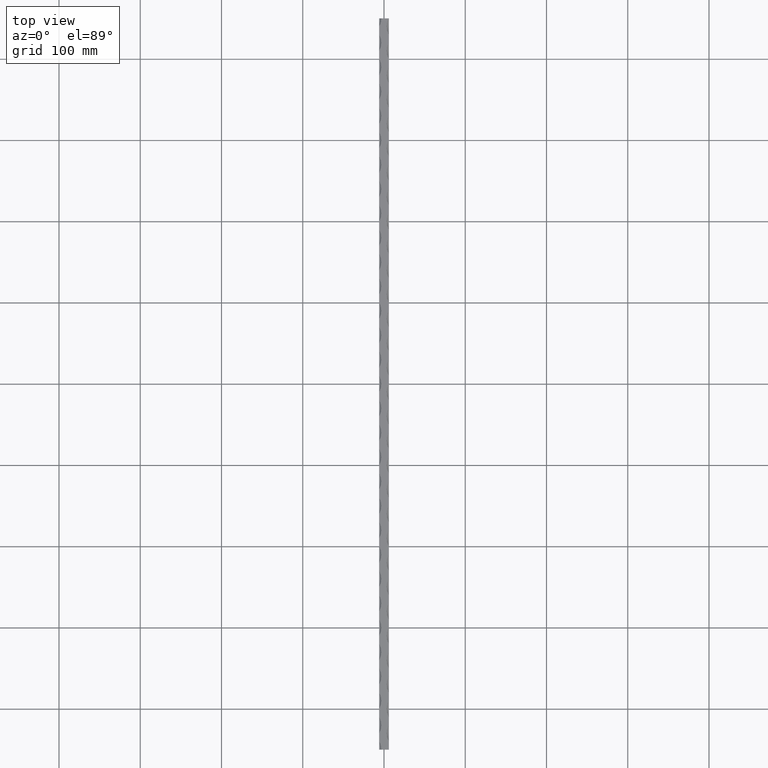
[diagram: clean part render]
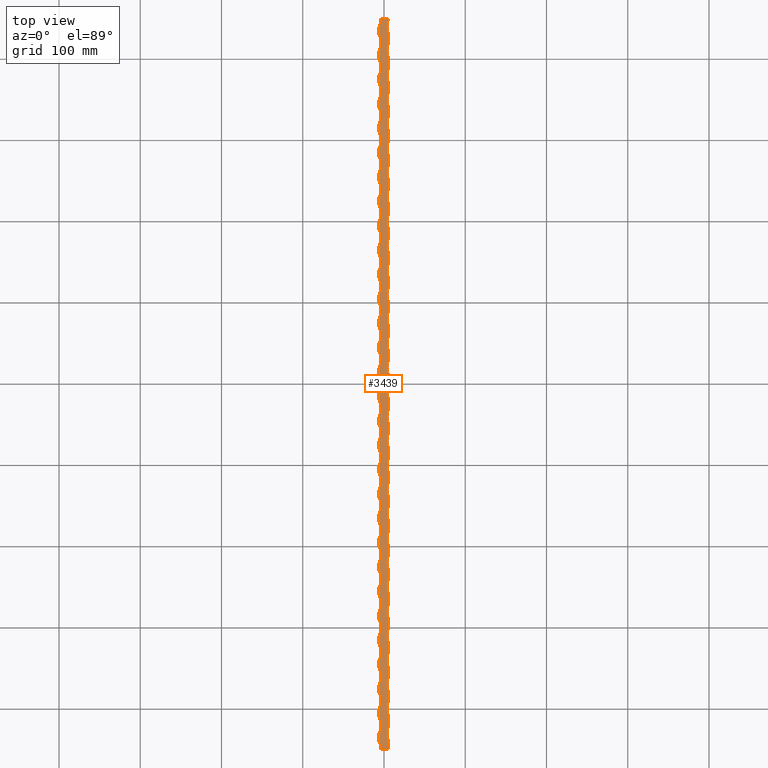
[diagram: same view with one face highlighted and labeled with its STEP entity id]
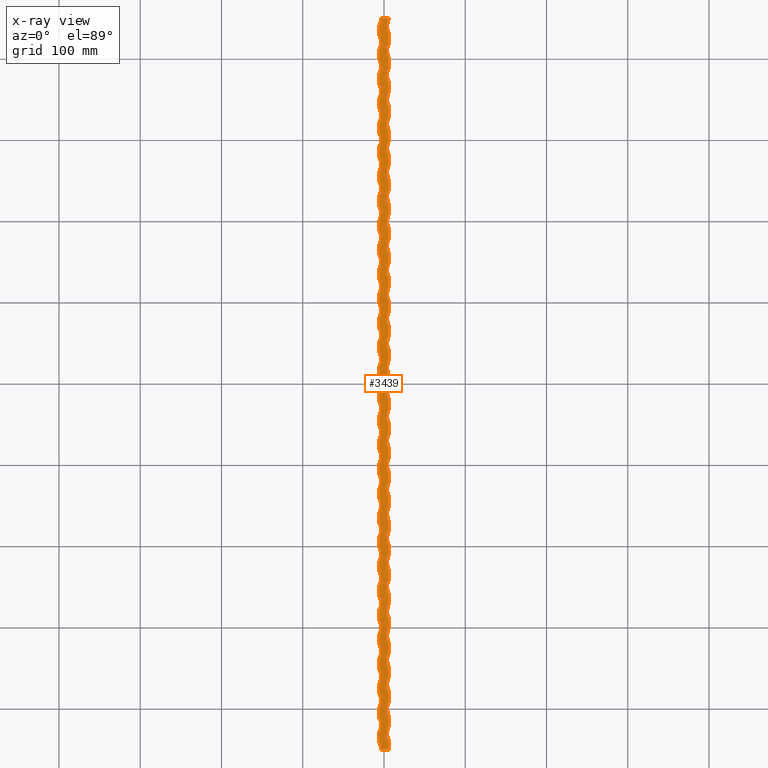
[diagram: x-ray of the same camera — body ghosted, the highlighted face saturated]
A machine part, top view. The second image highlights one B-rep face of the part: STEP entity #3439.
The next image is the same camera in x-ray: the body ghosted, the highlighted face saturated — about 0% of this face is hidden behind the body in this view.
In plain terms, the highlighted planar face has unit normal (0, 0, -1).
Its self-contained STEP definition (entity closure, byte-faithful):
#50 = LINE ( 'NONE', #6046, #11949 ) ;
#55 = DIRECTION ( 'NONE',  ( -0.000000000000000000, -1.000000000000000000, -0.000000000000000000 ) ) ;
#61 = VECTOR ( 'NONE', #259, 1000.000000000000000 ) ;
#72 = CARTESIAN_POINT ( 'NONE',  ( -5.999999999999998224, -260.0000000000000000, 6.000000000000000888 ) ) ;
#73 = ORIENTED_EDGE ( 'NONE', *, *, #1375, .F. ) ;
#96 = CARTESIAN_POINT ( 'NONE',  ( 6.000000000000001776, 29.99999999999996447, 6.000000000000000888 ) ) ;
#120 = CARTESIAN_POINT ( 'NONE',  ( -5.999999999999999112, 450.0000000000000000, 6.000000000000000888 ) ) ;
#125 = DIRECTION ( 'NONE',  ( -0.000000000000000000, -1.000000000000000000, -0.000000000000000000 ) ) ;
#128 = DIRECTION ( 'NONE',  ( -1.000000000000000000, 1.795949010423045303E-15, 0.000000000000000000 ) ) ;
#135 = CARTESIAN_POINT ( 'NONE',  ( -5.999999999999999112, 450.0000000000000000, 6.000000000000000888 ) ) ;
#160 = CIRCLE ( 'NONE', #9926, 21.25000000000002487 ) ;
#176 = DIRECTION ( 'NONE',  ( -1.000000000000000000, 0.000000000000000000, 0.000000000000000000 ) ) ;
#194 = CARTESIAN_POINT ( 'NONE',  ( -5.999999999999999112, 440.0000000000000000, 6.000000000000000888 ) ) ;
#210 = DIRECTION ( 'NONE',  ( -0.000000000000000000, -0.000000000000000000, 1.000000000000000000 ) ) ;
#219 = DIRECTION ( 'NONE',  ( -0.000000000000000000, -0.000000000000000000, 1.000000000000000000 ) ) ;
#238 = CARTESIAN_POINT ( 'NONE',  ( -5.999999999999998224, -130.0000000000000000, 6.000000000000000888 ) ) ;
#239 = VERTEX_POINT ( 'NONE', #12525 ) ;
#259 = DIRECTION ( 'NONE',  ( -0.000000000000000000, -1.000000000000000000, -0.000000000000000000 ) ) ;
#264 = DIRECTION ( 'NONE',  ( -1.000000000000000000, 0.000000000000000000, 0.000000000000000000 ) ) ;
#287 = EDGE_CURVE ( 'NONE', #9690, #2734, #779, .T. ) ;
#301 = EDGE_CURVE ( 'NONE', #5498, #3734, #4106, .T. ) ;
#321 = CARTESIAN_POINT ( 'NONE',  ( 6.000000000000000888, 450.0000000000000000, 6.000000000000000888 ) ) ;
#345 = VECTOR ( 'NONE', #13738, 1000.000000000000000 ) ;
#354 = CARTESIAN_POINT ( 'NONE',  ( 6.000000000000001776, -210.0000000000000000, 6.000000000000000888 ) ) ;
#388 = ORIENTED_EDGE ( 'NONE', *, *, #14198, .F. ) ;
#390 = DIRECTION ( 'NONE',  ( -0.000000000000000000, -0.000000000000000000, 1.000000000000000000 ) ) ;
#398 = VERTEX_POINT ( 'NONE', #7036 ) ;
#402 = VECTOR ( 'NONE', #12047, 1000.000000000000000 ) ;
#406 = CARTESIAN_POINT ( 'NONE',  ( 6.000000000000001776, -120.0000000000000000, 6.000000000000000888 ) ) ;
#418 = ORIENTED_EDGE ( 'NONE', *, *, #10290, .T. ) ;
#420 = VECTOR ( 'NONE', #8301, 1000.000000000000000 ) ;
#421 = ORIENTED_EDGE ( 'NONE', *, *, #564, .F. ) ;
#427 = VERTEX_POINT ( 'NONE', #9162 ) ;
#445 = DIRECTION ( 'NONE',  ( -0.000000000000000000, -0.000000000000000000, 1.000000000000000000 ) ) ;
#471 = CIRCLE ( 'NONE', #11113, 21.25000000000002487 ) ;
#492 = CARTESIAN_POINT ( 'NONE',  ( -24.75000000000002132, -149.9999999999999716, 6.000000000000000888 ) ) ;
#537 = CIRCLE ( 'NONE', #7840, 21.25000000000002487 ) ;
#561 = EDGE_CURVE ( 'NONE', #5894, #9136, #4801, .T. ) ;
#564 = EDGE_CURVE ( 'NONE', #9252, #3208, #7427, .T. ) ;
#580 = ORIENTED_EDGE ( 'NONE', *, *, #1697, .T. ) ;
#588 = VERTEX_POINT ( 'NONE', #1432 ) ;
#597 = ORIENTED_EDGE ( 'NONE', *, *, #12134, .F. ) ;
#610 = ORIENTED_EDGE ( 'NONE', *, *, #4597, .F. ) ;
#617 = DIRECTION ( 'NONE',  ( -0.000000000000000000, -1.000000000000000000, -0.000000000000000000 ) ) ;
#618 = VERTEX_POINT ( 'NONE', #11493 ) ;
#673 = CARTESIAN_POINT ( 'NONE',  ( -5.999999999999998224, 379.9999999999999432, 6.000000000000000888 ) ) ;
#679 = CARTESIAN_POINT ( 'NONE',  ( 6.000000000000000888, -410.0000000000000568, 6.000000000000000888 ) ) ;
#693 = DIRECTION ( 'NONE',  ( -1.000000000000000000, 0.000000000000000000, 0.000000000000000000 ) ) ;
#716 = DIRECTION ( 'NONE',  ( -0.000000000000000000, -0.000000000000000000, 1.000000000000000000 ) ) ;
#758 = VERTEX_POINT ( 'NONE', #10022 ) ;
#765 = VECTOR ( 'NONE', #10213, 1000.000000000000000 ) ;
#779 = LINE ( 'NONE', #3454, #61 ) ;
#797 = DIRECTION ( 'NONE',  ( -0.000000000000000000, -0.000000000000000000, 1.000000000000000000 ) ) ;
#798 = ORIENTED_EDGE ( 'NONE', *, *, #3419, .F. ) ;
#813 = DIRECTION ( 'NONE',  ( -0.000000000000000000, -1.000000000000000000, -0.000000000000000000 ) ) ;
#821 = VERTEX_POINT ( 'NONE', #6756 ) ;
#839 = EDGE_CURVE ( 'NONE', #10325, #5194, #7051, .T. ) ;
#848 = EDGE_CURVE ( 'NONE', #1273, #6850, #7741, .T. ) ;
#967 = VERTEX_POINT ( 'NONE', #8244 ) ;
#971 = ORIENTED_EDGE ( 'NONE', *, *, #6572, .F. ) ;
#989 = DIRECTION ( 'NONE',  ( -0.000000000000000000, -0.000000000000000000, 1.000000000000000000 ) ) ;
#1003 = CARTESIAN_POINT ( 'NONE',  ( -5.999999999999998224, -229.9999999999999716, 6.000000000000000888 ) ) ;
#1005 = AXIS2_PLACEMENT_3D ( 'NONE', #3322, #3529, #3383 ) ;
#1010 = DIRECTION ( 'NONE',  ( -0.000000000000000000, -1.000000000000000000, -0.000000000000000000 ) ) ;
#1013 = DIRECTION ( 'NONE',  ( -1.000000000000000000, 0.000000000000000000, 0.000000000000000000 ) ) ;
#1030 = LINE ( 'NONE', #5919, #13565 ) ;
#1046 = ORIENTED_EDGE ( 'NONE', *, *, #6210, .T. ) ;
#1056 = LINE ( 'NONE', #3758, #2976 ) ;
#1091 = AXIS2_PLACEMENT_3D ( 'NONE', #11254, #12450, #4477 ) ;
#1110 = EDGE_CURVE ( 'NONE', #8302, #9348, #5851, .T. ) ;
#1141 = CARTESIAN_POINT ( 'NONE',  ( -5.999999999999998224, 350.0000000000000568, 6.000000000000000888 ) ) ;
#1153 = DIRECTION ( 'NONE',  ( -0.000000000000000000, -0.000000000000000000, 1.000000000000000000 ) ) ;
#1155 = CARTESIAN_POINT ( 'NONE',  ( 6.000000000000000000, 369.9999999999999432, 6.000000000000000888 ) ) ;
#1181 = DIRECTION ( 'NONE',  ( -1.000000000000000000, 0.000000000000000000, 0.000000000000000000 ) ) ;
#1208 = VECTOR ( 'NONE', #8845, 1000.000000000000000 ) ;
#1224 = ORIENTED_EDGE ( 'NONE', *, *, #3170, .F. ) ;
#1267 = ORIENTED_EDGE ( 'NONE', *, *, #11865, .F. ) ;
#1273 = VERTEX_POINT ( 'NONE', #3932 ) ;
#1276 = DIRECTION ( 'NONE',  ( -0.000000000000000000, -0.000000000000000000, 1.000000000000000000 ) ) ;
#1278 = DIRECTION ( 'NONE',  ( -0.000000000000000000, -1.000000000000000000, -0.000000000000000000 ) ) ;
#1288 = ORIENTED_EDGE ( 'NONE', *, *, #4377, .F. ) ;
#1293 = CARTESIAN_POINT ( 'NONE',  ( -24.75000000000002132, -29.99999999999997158, 6.000000000000000888 ) ) ;
#1295 = DIRECTION ( 'NONE',  ( -0.000000000000000000, -1.000000000000000000, -0.000000000000000000 ) ) ;
#1310 = CARTESIAN_POINT ( 'NONE',  ( 6.000000000000000000, 279.9999999999999432, 6.000000000000000888 ) ) ;
#1313 = EDGE_CURVE ( 'NONE', #8983, #3861, #12768, .T. ) ;
#1336 = CARTESIAN_POINT ( 'NONE',  ( 6.000000000000000000, 399.9999999999999432, 6.000000000000000888 ) ) ;
#1337 = DIRECTION ( 'NONE',  ( -0.000000000000000000, -0.000000000000000000, 1.000000000000000000 ) ) ;
#1339 = CARTESIAN_POINT ( 'NONE',  ( 6.000000000000001776, 210.0000000000000284, 6.000000000000000888 ) ) ;
#1375 = EDGE_CURVE ( 'NONE', #1429, #588, #11764, .T. ) ;
#1383 = CIRCLE ( 'NONE', #10493, 21.25000000000002487 ) ;
#1405 = CARTESIAN_POINT ( 'NONE',  ( 24.75000000000002132, 320.0000000000000000, 6.000000000000000888 ) ) ;
#1429 = VERTEX_POINT ( 'NONE', #4907 ) ;
#1432 = CARTESIAN_POINT ( 'NONE',  ( 6.000000000000000888, -110.0000000000000426, 6.000000000000000888 ) ) ;
#1442 = CARTESIAN_POINT ( 'NONE',  ( 6.000000000000000888, 450.0000000000000000, 6.000000000000000888 ) ) ;
#1449 = VERTEX_POINT ( 'NONE', #13752 ) ;
#1475 = CARTESIAN_POINT ( 'NONE',  ( 6.000000000000000888, 450.0000000000000000, 6.000000000000000888 ) ) ;
#1491 = CARTESIAN_POINT ( 'NONE',  ( -5.999999999999999112, 159.9999999999999716, 6.000000000000000888 ) ) ;
#1504 = ORIENTED_EDGE ( 'NONE', *, *, #6560, .T. ) ;
#1531 = LINE ( 'NONE', #10046, #12857 ) ;
#1559 = CARTESIAN_POINT ( 'NONE',  ( -24.75000000000002132, 210.0000000000000284, 6.000000000000000888 ) ) ;
#1568 = EDGE_CURVE ( 'NONE', #11582, #12984, #6677, .T. ) ;
#1577 = CARTESIAN_POINT ( 'NONE',  ( 24.75000000000002132, -190.0000000000000000, 6.000000000000000888 ) ) ;
#1581 = CARTESIAN_POINT ( 'NONE',  ( -5.999999999999998224, 229.9999999999999147, 6.000000000000000888 ) ) ;
#1587 = ORIENTED_EDGE ( 'NONE', *, *, #8125, .T. ) ;
#1591 = VECTOR ( 'NONE', #7541, 1000.000000000000000 ) ;
#1630 = CIRCLE ( 'NONE', #9025, 21.25000000000002487 ) ;
#1632 = CARTESIAN_POINT ( 'NONE',  ( 6.000000000000000888, 450.0000000000000000, 6.000000000000000888 ) ) ;
#1669 = CARTESIAN_POINT ( 'NONE',  ( 6.000000000000001776, -149.9999999999999716, 6.000000000000000888 ) ) ;
#1673 = DIRECTION ( 'NONE',  ( -0.000000000000000000, -0.000000000000000000, 1.000000000000000000 ) ) ;
#1697 = EDGE_CURVE ( 'NONE', #3531, #13644, #5638, .T. ) ;
#1725 = CARTESIAN_POINT ( 'NONE',  ( 6.000000000000000888, 450.0000000000000000, 6.000000000000000888 ) ) ;
#1742 = AXIS2_PLACEMENT_3D ( 'NONE', #13930, #2770, #11766 ) ;
#1764 = CARTESIAN_POINT ( 'NONE',  ( -5.999999999999999112, -439.9999999999999432, 6.000000000000000888 ) ) ;
#1765 = VECTOR ( 'NONE', #8814, 1000.000000000000000 ) ;
#1766 = VERTEX_POINT ( 'NONE', #8032 ) ;
#1779 = DIRECTION ( 'NONE',  ( -1.000000000000000000, 0.000000000000000000, 0.000000000000000000 ) ) ;
#1786 = VECTOR ( 'NONE', #617, 1000.000000000000000 ) ;
#1788 = DIRECTION ( 'NONE',  ( -1.000000000000000000, 0.000000000000000000, 0.000000000000000000 ) ) ;
#1807 = DIRECTION ( 'NONE',  ( -1.000000000000000000, 0.000000000000000000, 0.000000000000000000 ) ) ;
#1831 = VERTEX_POINT ( 'NONE', #4989 ) ;
#1872 = EDGE_CURVE ( 'NONE', #10781, #10963, #7201, .T. ) ;
#1897 = EDGE_CURVE ( 'NONE', #2673, #14325, #2131, .T. ) ;
#1913 = VECTOR ( 'NONE', #13687, 1000.000000000000000 ) ;
#1932 = LINE ( 'NONE', #11785, #4038 ) ;
#1934 = CARTESIAN_POINT ( 'NONE',  ( -24.75000000000002132, 420.0000000000000000, 6.000000000000000888 ) ) ;
#1944 = DIRECTION ( 'NONE',  ( -0.000000000000000000, -0.000000000000000000, 1.000000000000000000 ) ) ;
#1959 = CARTESIAN_POINT ( 'NONE',  ( 6.000000000000000888, 450.0000000000000000, 6.000000000000000888 ) ) ;
#1999 = CARTESIAN_POINT ( 'NONE',  ( 6.000000000000000888, 450.0000000000000000, 6.000000000000000888 ) ) ;
#2018 = VERTEX_POINT ( 'NONE', #9775 ) ;
#2021 = VERTEX_POINT ( 'NONE', #3095 ) ;
#2025 = VERTEX_POINT ( 'NONE', #6487 ) ;
#2026 = CARTESIAN_POINT ( 'NONE',  ( -5.999999999999999112, 450.0000000000000000, 6.000000000000000888 ) ) ;
#2048 = CARTESIAN_POINT ( 'NONE',  ( -5.999999999999999112, 450.0000000000000000, 6.000000000000000888 ) ) ;
#2064 = DIRECTION ( 'NONE',  ( -0.000000000000000000, -0.000000000000000000, 1.000000000000000000 ) ) ;
#2066 = CARTESIAN_POINT ( 'NONE',  ( -24.75000000000002132, 29.99999999999997158, 6.000000000000000888 ) ) ;
#2068 = VECTOR ( 'NONE', #6961, 1000.000000000000000 ) ;
#2076 = EDGE_CURVE ( 'NONE', #11154, #6822, #4575, .T. ) ;
#2082 = VERTEX_POINT ( 'NONE', #13041 ) ;
#2121 = DIRECTION ( 'NONE',  ( -1.000000000000000000, 0.000000000000000000, 0.000000000000000000 ) ) ;
#2127 = CARTESIAN_POINT ( 'NONE',  ( 6.000000000000001776, -6.938893903907228378E-15, 6.000000000000000888 ) ) ;
#2131 = CIRCLE ( 'NONE', #5675, 21.25000000000002487 ) ;
#2142 = CARTESIAN_POINT ( 'NONE',  ( -5.999999999999999112, 430.0000000000000000, 6.000000000000000888 ) ) ;
#2145 = EDGE_CURVE ( 'NONE', #4596, #7551, #10888, .T. ) ;
#2155 = CARTESIAN_POINT ( 'NONE',  ( 24.75000000000002132, -159.9999999999999716, 6.000000000000000888 ) ) ;
#2163 = ORIENTED_EDGE ( 'NONE', *, *, #6271, .F. ) ;
#2211 = DIRECTION ( 'NONE',  ( -1.000000000000000000, 0.000000000000000000, 0.000000000000000000 ) ) ;
#2212 = AXIS2_PLACEMENT_3D ( 'NONE', #13956, #14061, #1779 ) ;
#2237 = EDGE_CURVE ( 'NONE', #3734, #13053, #14149, .T. ) ;
#2243 = LINE ( 'NONE', #3799, #2068 ) ;
#2265 = DIRECTION ( 'NONE',  ( -0.000000000000000000, -1.000000000000000000, -0.000000000000000000 ) ) ;
#2272 = CIRCLE ( 'NONE', #12700, 21.25000000000002487 ) ;
#2333 = ORIENTED_EDGE ( 'NONE', *, *, #13227, .F. ) ;
#2334 = ORIENTED_EDGE ( 'NONE', *, *, #2903, .F. ) ;
#2336 = VERTEX_POINT ( 'NONE', #238 ) ;
#2348 = ORIENTED_EDGE ( 'NONE', *, *, #12771, .T. ) ;
#2351 = DIRECTION ( 'NONE',  ( -0.000000000000000000, -1.000000000000000000, -0.000000000000000000 ) ) ;
#2364 = LINE ( 'NONE', #14213, #6643 ) ;
#2385 = VERTEX_POINT ( 'NONE', #12403 ) ;
#2389 = AXIS2_PLACEMENT_3D ( 'NONE', #9792, #3108, #7612 ) ;
#2405 = DIRECTION ( 'NONE',  ( -0.000000000000000000, -0.000000000000000000, 1.000000000000000000 ) ) ;
#2413 = VECTOR ( 'NONE', #10089, 1000.000000000000000 ) ;
#2423 = AXIS2_PLACEMENT_3D ( 'NONE', #7585, #5370, #5222 ) ;
#2442 = VECTOR ( 'NONE', #4651, 1000.000000000000000 ) ;
#2453 = VECTOR ( 'NONE', #2515, 1000.000000000000000 ) ;
#2456 = CARTESIAN_POINT ( 'NONE',  ( 6.000000000000000888, 450.0000000000000000, 6.000000000000000888 ) ) ;
#2460 = ORIENTED_EDGE ( 'NONE', *, *, #5727, .F. ) ;
#2469 = DIRECTION ( 'NONE',  ( -0.000000000000000000, -0.000000000000000000, 1.000000000000000000 ) ) ;
#2490 = DIRECTION ( 'NONE',  ( -0.000000000000000000, -1.000000000000000000, -0.000000000000000000 ) ) ;
#2515 = DIRECTION ( 'NONE',  ( -0.000000000000000000, -1.000000000000000000, -0.000000000000000000 ) ) ;
#2529 = EDGE_CURVE ( 'NONE', #2916, #1766, #9260, .T. ) ;
#2545 = AXIS2_PLACEMENT_3D ( 'NONE', #12208, #9967, #11253 ) ;
#2553 = VECTOR ( 'NONE', #5378, 1000.000000000000000 ) ;
#2558 = EDGE_CURVE ( 'NONE', #398, #1831, #13791, .T. ) ;
#2561 = DIRECTION ( 'NONE',  ( -1.000000000000000000, 0.000000000000000000, -0.000000000000000000 ) ) ;
#2625 = VECTOR ( 'NONE', #9464, 1000.000000000000000 ) ;
#2644 = LINE ( 'NONE', #2741, #4208 ) ;
#2655 = DIRECTION ( 'NONE',  ( -0.000000000000000000, -0.000000000000000000, 1.000000000000000000 ) ) ;
#2673 = VERTEX_POINT ( 'NONE', #6080 ) ;
#2675 = AXIS2_PLACEMENT_3D ( 'NONE', #6767, #1153, #13279 ) ;
#2677 = ORIENTED_EDGE ( 'NONE', *, *, #14102, .T. ) ;
#2701 = CARTESIAN_POINT ( 'NONE',  ( 6.000000000000000888, 450.0000000000000000, 6.000000000000000888 ) ) ;
#2724 = CARTESIAN_POINT ( 'NONE',  ( 6.000000000000001776, -60.00000000000000000, 6.000000000000000888 ) ) ;
#2734 = VERTEX_POINT ( 'NONE', #1764 ) ;
#2741 = CARTESIAN_POINT ( 'NONE',  ( -5.999999999999999112, 450.0000000000000000, 6.000000000000000888 ) ) ;
#2747 = CIRCLE ( 'NONE', #2212, 21.25000000000002487 ) ;
#2762 = CARTESIAN_POINT ( 'NONE',  ( -3.499999999999996891, 450.0000000000000000, 6.000000000000000888 ) ) ;
#2770 = DIRECTION ( 'NONE',  ( -0.000000000000000000, -0.000000000000000000, 1.000000000000000000 ) ) ;
#2790 = CARTESIAN_POINT ( 'NONE',  ( -5.999999999999999112, 190.0000000000000000, 6.000000000000000888 ) ) ;
#2795 = VERTEX_POINT ( 'NONE', #6181 ) ;
#2797 = VECTOR ( 'NONE', #10304, 1000.000000000000000 ) ;
#2799 = EDGE_CURVE ( 'NONE', #6727, #758, #1932, .T. ) ;
#2809 = VERTEX_POINT ( 'NONE', #2838 ) ;
#2832 = VECTOR ( 'NONE', #125, 1000.000000000000000 ) ;
#2838 = CARTESIAN_POINT ( 'NONE',  ( -5.999999999999998224, 49.99999999999998579, 6.000000000000000888 ) ) ;
#2865 = DIRECTION ( 'NONE',  ( -0.000000000000000000, -0.000000000000000000, 1.000000000000000000 ) ) ;
#2874 = VERTEX_POINT ( 'NONE', #4766 ) ;
#2877 = VERTEX_POINT ( 'NONE', #5907 ) ;
#2878 = AXIS2_PLACEMENT_3D ( 'NONE', #6440, #13026, #10974 ) ;
#2903 = EDGE_CURVE ( 'NONE', #8752, #12910, #14133, .T. ) ;
#2916 = VERTEX_POINT ( 'NONE', #1581 ) ;
#2919 = CIRCLE ( 'NONE', #4533, 21.25000000000002487 ) ;
#2923 = CARTESIAN_POINT ( 'NONE',  ( -24.75000000000002132, -300.0000000000000000, 6.000000000000000888 ) ) ;
#2931 = DIRECTION ( 'NONE',  ( -0.000000000000000000, -0.000000000000000000, 1.000000000000000000 ) ) ;
#2932 = DIRECTION ( 'NONE',  ( -0.000000000000000000, -1.000000000000000000, -0.000000000000000000 ) ) ;
#2941 = VECTOR ( 'NONE', #6660, 1000.000000000000000 ) ;
#2947 = DIRECTION ( 'NONE',  ( -0.000000000000000000, -1.000000000000000000, -0.000000000000000000 ) ) ;
#2964 = VERTEX_POINT ( 'NONE', #2127 ) ;
#2967 = LINE ( 'NONE', #4551, #1208 ) ;
#2976 = VECTOR ( 'NONE', #11569, 1000.000000000000000 ) ;
#3008 = ORIENTED_EDGE ( 'NONE', *, *, #2799, .T. ) ;
#3009 = ORIENTED_EDGE ( 'NONE', *, *, #9882, .F. ) ;
#3050 = DIRECTION ( 'NONE',  ( -0.000000000000000000, -0.000000000000000000, 1.000000000000000000 ) ) ;
#3054 = VECTOR ( 'NONE', #13921, 1000.000000000000000 ) ;
#3059 = AXIS2_PLACEMENT_3D ( 'NONE', #5147, #11822, #10895 ) ;
#3084 = CIRCLE ( 'NONE', #13498, 21.25000000000002487 ) ;
#3095 = CARTESIAN_POINT ( 'NONE',  ( -5.999999999999999112, 249.9999999999999432, 6.000000000000000888 ) ) ;
#3105 = LINE ( 'NONE', #10021, #2941 ) ;
#3107 = VERTEX_POINT ( 'NONE', #1141 ) ;
#3108 = DIRECTION ( 'NONE',  ( -0.000000000000000000, -0.000000000000000000, 1.000000000000000000 ) ) ;
#3110 = CARTESIAN_POINT ( 'NONE',  ( -24.75000000000002132, -90.00000000000002842, 6.000000000000000888 ) ) ;
#3138 = CARTESIAN_POINT ( 'NONE',  ( 24.75000000000002132, 290.0000000000000000, 6.000000000000000888 ) ) ;
#3159 = VERTEX_POINT ( 'NONE', #7787 ) ;
#3170 = EDGE_CURVE ( 'NONE', #3107, #10122, #2272, .T. ) ;
#3188 = EDGE_CURVE ( 'NONE', #2673, #618, #8212, .T. ) ;
#3204 = DIRECTION ( 'NONE',  ( -0.000000000000000000, -0.000000000000000000, 1.000000000000000000 ) ) ;
#3208 = VERTEX_POINT ( 'NONE', #5743 ) ;
#3229 = ORIENTED_EDGE ( 'NONE', *, *, #13907, .T. ) ;
#3246 = AXIS2_PLACEMENT_3D ( 'NONE', #10139, #2655, #4599 ) ;
#3257 = EDGE_CURVE ( 'NONE', #13080, #4825, #7694, .T. ) ;
#3258 = CARTESIAN_POINT ( 'NONE',  ( -5.999999999999999112, 450.0000000000000000, 6.000000000000000888 ) ) ;
#3269 = EDGE_CURVE ( 'NONE', #10282, #10926, #12909, .T. ) ;
#3322 = CARTESIAN_POINT ( 'NONE',  ( 24.75000000000002132, 80.00000000000001421, 6.000000000000000888 ) ) ;
#3344 = ORIENTED_EDGE ( 'NONE', *, *, #9983, .F. ) ;
#3355 = EDGE_CURVE ( 'NONE', #5381, #14325, #10850, .T. ) ;
#3359 = CIRCLE ( 'NONE', #12569, 21.25000000000002487 ) ;
#3381 = DIRECTION ( 'NONE',  ( -0.000000000000000000, -0.000000000000000000, 1.000000000000000000 ) ) ;
#3383 = DIRECTION ( 'NONE',  ( -1.000000000000000000, 0.000000000000000000, 0.000000000000000000 ) ) ;
#3386 = CARTESIAN_POINT ( 'NONE',  ( -5.999999999999999112, 450.0000000000000000, 6.000000000000000888 ) ) ;
#3399 = CARTESIAN_POINT ( 'NONE',  ( 6.000000000000001776, 180.0000000000000000, 6.000000000000000888 ) ) ;
#3410 = VECTOR ( 'NONE', #12572, 1000.000000000000000 ) ;
#3414 = CARTESIAN_POINT ( 'NONE',  ( -24.75000000000002132, -449.9999999999999432, 6.000000000000000888 ) ) ;
#3419 = EDGE_CURVE ( 'NONE', #2874, #9504, #9418, .T. ) ;
#3423 = LINE ( 'NONE', #13358, #6077 ) ;
#3429 = CARTESIAN_POINT ( 'NONE',  ( 6.000000000000000888, 450.0000000000000000, 6.000000000000000888 ) ) ;
#3439 = ADVANCED_FACE ( 'NONE', ( #3653 ), #11530, .F. ) ;
#3441 = EDGE_CURVE ( 'NONE', #821, #4765, #13230, .T. ) ;
#3446 = EDGE_CURVE ( 'NONE', #11347, #13799, #6139, .T. ) ;
#3449 = VECTOR ( 'NONE', #10742, 1000.000000000000000 ) ;
#3450 = ORIENTED_EDGE ( 'NONE', *, *, #14369, .F. ) ;
#3454 = CARTESIAN_POINT ( 'NONE',  ( -5.999999999999999112, 450.0000000000000000, 6.000000000000000888 ) ) ;
#3456 = CARTESIAN_POINT ( 'NONE',  ( 6.000000000000000888, 450.0000000000000000, 6.000000000000000888 ) ) ;
#3461 = VERTEX_POINT ( 'NONE', #13640 ) ;
#3462 = CARTESIAN_POINT ( 'NONE',  ( 24.75000000000002132, -220.0000000000000000, 6.000000000000000888 ) ) ;
#3481 = CARTESIAN_POINT ( 'NONE',  ( 6.000000000000000888, 450.0000000000000000, 6.000000000000000888 ) ) ;
#3483 = VECTOR ( 'NONE', #7493, 1000.000000000000000 ) ;
#3485 = LINE ( 'NONE', #9034, #12898 ) ;
#3488 = CIRCLE ( 'NONE', #7397, 21.25000000000002487 ) ;
#3529 = DIRECTION ( 'NONE',  ( -0.000000000000000000, -0.000000000000000000, 1.000000000000000000 ) ) ;
#3531 = VERTEX_POINT ( 'NONE', #12856 ) ;
#3533 = EDGE_CURVE ( 'NONE', #13351, #1766, #1383, .T. ) ;
#3602 = CARTESIAN_POINT ( 'NONE',  ( -24.75000000000002132, -180.0000000000000000, 6.000000000000000888 ) ) ;
#3607 = ORIENTED_EDGE ( 'NONE', *, *, #4985, .F. ) ;
#3612 = AXIS2_PLACEMENT_3D ( 'NONE', #3462, #1276, #11485 ) ;
#3620 = EDGE_CURVE ( 'NONE', #3159, #2795, #6308, .T. ) ;
#3644 = VECTOR ( 'NONE', #14379, 1000.000000000000000 ) ;
#3653 = FACE_OUTER_BOUND ( 'NONE', #3749, .T. ) ;
#3664 = CARTESIAN_POINT ( 'NONE',  ( -5.999999999999998224, -380.0000000000000000, 6.000000000000000888 ) ) ;
#3682 = DIRECTION ( 'NONE',  ( -0.000000000000000000, -1.000000000000000000, -0.000000000000000000 ) ) ;
#3692 = VECTOR ( 'NONE', #8259, 1000.000000000000000 ) ;
#3712 = DIRECTION ( 'NONE',  ( 0.000000000000000000, 0.000000000000000000, -1.000000000000000000 ) ) ;
#3723 = VERTEX_POINT ( 'NONE', #8911 ) ;
#3726 = ORIENTED_EDGE ( 'NONE', *, *, #9963, .F. ) ;
#3732 = CARTESIAN_POINT ( 'NONE',  ( 24.75000000000002132, -250.0000000000000000, 6.000000000000000888 ) ) ;
#3734 = VERTEX_POINT ( 'NONE', #96 ) ;
#3749 = EDGE_LOOP ( 'NONE', ( #6876, #12808, #9814, #5508, #12916, #13094, #9809, #4593, #8660, #5615, #7348, #12439, #597, #14131, #11211, #8480, #7728, #11992, #5709, #3450, #3917, #4938, #4234, #8181, #798, #12621, #2163, #11587, #13835, #11221, #7687, #73, #4345, #5681, #11592, #8749, #8048, #7542, #610, #11977, #10648, #5495, #3607, #13269, #11126, #10535, #5808, #421, #8960, #9966, #12380, #13991, #7420, #10044, #8604, #4247, #7210, #6415, #6237, #3009, #4007, #2334, #4880, #6639, #5127, #13241, #1288, #13431, #7064, #2460, #11446, #4116, #6029, #9043, #6367, #1224, #2348, #971, #2677, #5635, #1046, #4286, #10731, #12939, #9275, #13488, #11656, #5625, #4638, #3344, #10160, #3941, #3229, #9793, #8950, #3726, #418, #11909, #1504, #3788, #7357, #2333, #5457, #7735, #4018, #10943, #6028, #1267, #10109, #13224, #3008, #11887, #6899, #11369, #1587, #4298, #12951, #7623, #12814, #388, #580, #5682, #7607 ) ) ;
#3758 = CARTESIAN_POINT ( 'NONE',  ( -5.999999999999999112, 450.0000000000000000, 6.000000000000000888 ) ) ;
#3774 = CARTESIAN_POINT ( 'NONE',  ( -5.999999999999999112, 100.0000000000000284, 6.000000000000000888 ) ) ;
#3787 = DIRECTION ( 'NONE',  ( -1.000000000000000000, 0.000000000000000000, 0.000000000000000000 ) ) ;
#3788 = ORIENTED_EDGE ( 'NONE', *, *, #1110, .F. ) ;
#3799 = CARTESIAN_POINT ( 'NONE',  ( -5.999999999999999112, 450.0000000000000000, 6.000000000000000888 ) ) ;
#3800 = AXIS2_PLACEMENT_3D ( 'NONE', #9003, #7991, #13560 ) ;
#3857 = EDGE_CURVE ( 'NONE', #11875, #8571, #7678, .T. ) ;
#3861 = VERTEX_POINT ( 'NONE', #11541 ) ;
#3917 = ORIENTED_EDGE ( 'NONE', *, *, #5747, .F. ) ;
#3932 = CARTESIAN_POINT ( 'NONE',  ( -5.999999999999998224, -39.99999999999998579, 6.000000000000000888 ) ) ;
#3941 = ORIENTED_EDGE ( 'NONE', *, *, #12796, .F. ) ;
#3955 = LINE ( 'NONE', #10787, #3054 ) ;
#3981 = AXIS2_PLACEMENT_3D ( 'NONE', #12727, #11750, #3787 ) ;
#3982 = CIRCLE ( 'NONE', #12739, 21.25000000000002487 ) ;
#4007 = ORIENTED_EDGE ( 'NONE', *, *, #9330, .F. ) ;
#4018 = ORIENTED_EDGE ( 'NONE', *, *, #9347, .T. ) ;
#4038 = VECTOR ( 'NONE', #12815, 1000.000000000000000 ) ;
#4052 = EDGE_CURVE ( 'NONE', #12984, #10522, #10477, .T. ) ;
#4060 = AXIS2_PLACEMENT_3D ( 'NONE', #3732, #12591, #5942 ) ;
#4106 = LINE ( 'NONE', #4643, #11611 ) ;
#4116 = ORIENTED_EDGE ( 'NONE', *, *, #1897, .F. ) ;
#4131 = VECTOR ( 'NONE', #1295, 1000.000000000000000 ) ;
#4143 = CARTESIAN_POINT ( 'NONE',  ( 6.000000000000000888, 450.0000000000000000, 6.000000000000000888 ) ) ;
#4147 = CARTESIAN_POINT ( 'NONE',  ( 24.75000000000002132, 410.0000000000000000, 6.000000000000000888 ) ) ;
#4172 = CARTESIAN_POINT ( 'NONE',  ( 24.75000000000002132, 259.9999999999999432, 6.000000000000000888 ) ) ;
#4186 = CIRCLE ( 'NONE', #7823, 21.25000000000002487 ) ;
#4206 = CIRCLE ( 'NONE', #9378, 21.25000000000002487 ) ;
#4208 = VECTOR ( 'NONE', #9444, 1000.000000000000000 ) ;
#4209 = CARTESIAN_POINT ( 'NONE',  ( -5.999999999999998224, -430.0000000000000000, 6.000000000000000888 ) ) ;
#4234 = ORIENTED_EDGE ( 'NONE', *, *, #10964, .F. ) ;
#4241 = VERTEX_POINT ( 'NONE', #9009 ) ;
#4247 = ORIENTED_EDGE ( 'NONE', *, *, #6716, .F. ) ;
#4256 = CARTESIAN_POINT ( 'NONE',  ( 6.000000000000001776, -329.9999999999999432, 6.000000000000000888 ) ) ;
#4266 = DIRECTION ( 'NONE',  ( -0.000000000000000000, -0.000000000000000000, 1.000000000000000000 ) ) ;
#4286 = ORIENTED_EDGE ( 'NONE', *, *, #10802, .F. ) ;
#4291 = AXIS2_PLACEMENT_3D ( 'NONE', #12560, #9155, #4846 ) ;
#4298 = ORIENTED_EDGE ( 'NONE', *, *, #10190, .F. ) ;
#4308 = EDGE_CURVE ( 'NONE', #7568, #618, #160, .T. ) ;
#4313 = CIRCLE ( 'NONE', #1742, 21.25000000000002487 ) ;
#4331 = CIRCLE ( 'NONE', #11657, 21.25000000000002487 ) ;
#4345 = ORIENTED_EDGE ( 'NONE', *, *, #10374, .F. ) ;
#4377 = EDGE_CURVE ( 'NONE', #9865, #13828, #9758, .T. ) ;
#4387 = AXIS2_PLACEMENT_3D ( 'NONE', #1293, #12451, #128 ) ;
#4422 = DIRECTION ( 'NONE',  ( -0.000000000000000000, -1.000000000000000000, -0.000000000000000000 ) ) ;
#4477 = DIRECTION ( 'NONE',  ( -1.000000000000000000, 0.000000000000000000, 0.000000000000000000 ) ) ;
#4533 = AXIS2_PLACEMENT_3D ( 'NONE', #4147, #716, #10740 ) ;
#4551 = CARTESIAN_POINT ( 'NONE',  ( -5.999999999999999112, 450.0000000000000000, 6.000000000000000888 ) ) ;
#4559 = VECTOR ( 'NONE', #14014, 1000.000000000000000 ) ;
#4575 = CIRCLE ( 'NONE', #2389, 21.25000000000002487 ) ;
#4579 = LINE ( 'NONE', #11343, #2832 ) ;
#4593 = ORIENTED_EDGE ( 'NONE', *, *, #1313, .T. ) ;
#4596 = VERTEX_POINT ( 'NONE', #8753 ) ;
#4597 = EDGE_CURVE ( 'NONE', #13053, #2964, #12543, .T. ) ;
#4599 = DIRECTION ( 'NONE',  ( -1.000000000000000000, 0.000000000000000000, 0.000000000000000000 ) ) ;
#4612 = CARTESIAN_POINT ( 'NONE',  ( 6.000000000000000888, -440.0000000000000000, 6.000000000000000888 ) ) ;
#4638 = ORIENTED_EDGE ( 'NONE', *, *, #9147, .T. ) ;
#4641 = LINE ( 'NONE', #2026, #14068 ) ;
#4643 = CARTESIAN_POINT ( 'NONE',  ( 6.000000000000000888, 450.0000000000000000, 6.000000000000000888 ) ) ;
#4644 = CARTESIAN_POINT ( 'NONE',  ( 6.000000000000000888, 450.0000000000000000, 6.000000000000000888 ) ) ;
#4651 = DIRECTION ( 'NONE',  ( -0.000000000000000000, -1.000000000000000000, -0.000000000000000000 ) ) ;
#4691 = VECTOR ( 'NONE', #5350, 1000.000000000000000 ) ;
#4702 = EDGE_CURVE ( 'NONE', #13327, #8073, #4206, .T. ) ;
#4703 = VECTOR ( 'NONE', #13415, 1000.000000000000000 ) ;
#4743 = CARTESIAN_POINT ( 'NONE',  ( -24.75000000000002132, 450.0000000000000000, 6.000000000000000888 ) ) ;
#4746 = CARTESIAN_POINT ( 'NONE',  ( -5.999999999999999112, 450.0000000000000000, 6.000000000000000888 ) ) ;
#4765 = VERTEX_POINT ( 'NONE', #9956 ) ;
#4766 = CARTESIAN_POINT ( 'NONE',  ( 6.000000000000000888, -200.0000000000000000, 6.000000000000000888 ) ) ;
#4785 = VECTOR ( 'NONE', #4422, 1000.000000000000000 ) ;
#4801 = CIRCLE ( 'NONE', #4060, 21.25000000000002487 ) ;
#4806 = EDGE_CURVE ( 'NONE', #13351, #9570, #8889, .T. ) ;
#4820 = DIRECTION ( 'NONE',  ( -1.000000000000000000, 0.000000000000000000, 0.000000000000000000 ) ) ;
#4825 = VERTEX_POINT ( 'NONE', #3664 ) ;
#4846 = DIRECTION ( 'NONE',  ( -1.000000000000000000, 0.000000000000000000, 0.000000000000000000 ) ) ;
#4870 = AXIS2_PLACEMENT_3D ( 'NONE', #9369, #2931, #12617 ) ;
#4876 = LINE ( 'NONE', #13928, #3449 ) ;
#4880 = ORIENTED_EDGE ( 'NONE', *, *, #11605, .F. ) ;
#4890 = EDGE_CURVE ( 'NONE', #967, #12128, #5593, .T. ) ;
#4907 = CARTESIAN_POINT ( 'NONE',  ( 6.000000000000001776, -90.00000000000002842, 6.000000000000000888 ) ) ;
#4909 = VECTOR ( 'NONE', #5891, 1000.000000000000000 ) ;
#4938 = ORIENTED_EDGE ( 'NONE', *, *, #561, .F. ) ;
#4942 = VECTOR ( 'NONE', #2947, 1000.000000000000000 ) ;
#4946 = CARTESIAN_POINT ( 'NONE',  ( -5.999999999999999112, 340.0000000000000000, 6.000000000000000888 ) ) ;
#4985 = EDGE_CURVE ( 'NONE', #3461, #7063, #9225, .T. ) ;
#4987 = CARTESIAN_POINT ( 'NONE',  ( 6.000000000000001776, -29.99999999999997513, 6.000000000000000888 ) ) ;
#4989 = CARTESIAN_POINT ( 'NONE',  ( 6.000000000000001776, -300.0000000000000000, 6.000000000000000888 ) ) ;
#4995 = DIRECTION ( 'NONE',  ( -1.000000000000000000, 0.000000000000000000, 0.000000000000000000 ) ) ;
#5006 = VECTOR ( 'NONE', #14254, 1000.000000000000000 ) ;
#5023 = DIRECTION ( 'NONE',  ( -1.000000000000000000, 0.000000000000000000, 0.000000000000000000 ) ) ;
#5029 = CARTESIAN_POINT ( 'NONE',  ( -5.999999999999998224, -10.00000000000001421, 6.000000000000000888 ) ) ;
#5039 = CARTESIAN_POINT ( 'NONE',  ( -24.75000000000002132, -270.0000000000000000, 6.000000000000000888 ) ) ;
#5105 = VERTEX_POINT ( 'NONE', #14093 ) ;
#5127 = ORIENTED_EDGE ( 'NONE', *, *, #3857, .F. ) ;
#5147 = CARTESIAN_POINT ( 'NONE',  ( -24.75000000000002132, 60.00000000000000000, 6.000000000000000888 ) ) ;
#5194 = VERTEX_POINT ( 'NONE', #12319 ) ;
#5222 = DIRECTION ( 'NONE',  ( -1.000000000000000000, 0.000000000000000000, 0.000000000000000000 ) ) ;
#5246 = DIRECTION ( 'NONE',  ( -0.000000000000000000, -0.000000000000000000, 1.000000000000000000 ) ) ;
#5249 = CARTESIAN_POINT ( 'NONE',  ( 6.000000000000000888, -320.0000000000000000, 6.000000000000000888 ) ) ;
#5279 = CARTESIAN_POINT ( 'NONE',  ( -5.999999999999998224, 110.0000000000000426, 6.000000000000000888 ) ) ;
#5288 = DIRECTION ( 'NONE',  ( -0.000000000000000000, -1.000000000000000000, -0.000000000000000000 ) ) ;
#5311 = VERTEX_POINT ( 'NONE', #1310 ) ;
#5327 = CIRCLE ( 'NONE', #13313, 21.25000000000002487 ) ;
#5345 = DIRECTION ( 'NONE',  ( -1.000000000000000000, 0.000000000000000000, 0.000000000000000000 ) ) ;
#5350 = DIRECTION ( 'NONE',  ( -0.000000000000000000, -1.000000000000000000, -0.000000000000000000 ) ) ;
#5370 = DIRECTION ( 'NONE',  ( -0.000000000000000000, -0.000000000000000000, 1.000000000000000000 ) ) ;
#5378 = DIRECTION ( 'NONE',  ( -0.000000000000000000, -1.000000000000000000, -0.000000000000000000 ) ) ;
#5381 = VERTEX_POINT ( 'NONE', #194 ) ;
#5387 = CARTESIAN_POINT ( 'NONE',  ( 6.000000000000000888, -80.00000000000001421, 6.000000000000000888 ) ) ;
#5407 = LINE ( 'NONE', #7720, #2413 ) ;
#5422 = DIRECTION ( 'NONE',  ( -0.000000000000000000, -0.000000000000000000, 1.000000000000000000 ) ) ;
#5457 = ORIENTED_EDGE ( 'NONE', *, *, #848, .T. ) ;
#5495 = ORIENTED_EDGE ( 'NONE', *, *, #12151, .F. ) ;
#5498 = VERTEX_POINT ( 'NONE', #6451 ) ;
#5507 = CARTESIAN_POINT ( 'NONE',  ( 6.000000000000001776, 269.9999999999999432, 6.000000000000000888 ) ) ;
#5508 = ORIENTED_EDGE ( 'NONE', *, *, #9032, .T. ) ;
#5515 = DIRECTION ( 'NONE',  ( -1.000000000000000000, 0.000000000000000000, 0.000000000000000000 ) ) ;
#5547 = CARTESIAN_POINT ( 'NONE',  ( -5.999999999999999112, 310.0000000000000000, 6.000000000000000888 ) ) ;
#5549 = EDGE_CURVE ( 'NONE', #2964, #4596, #11012, .T. ) ;
#5556 = EDGE_CURVE ( 'NONE', #6013, #13644, #12523, .T. ) ;
#5577 = CIRCLE ( 'NONE', #12108, 21.25000000000002487 ) ;
#5593 = LINE ( 'NONE', #7099, #2625 ) ;
#5615 = ORIENTED_EDGE ( 'NONE', *, *, #4052, .F. ) ;
#5625 = ORIENTED_EDGE ( 'NONE', *, *, #9629, .F. ) ;
#5633 = VERTEX_POINT ( 'NONE', #14106 ) ;
#5635 = ORIENTED_EDGE ( 'NONE', *, *, #5841, .F. ) ;
#5638 = LINE ( 'NONE', #135, #9806 ) ;
#5644 = CARTESIAN_POINT ( 'NONE',  ( 6.000000000000000888, 450.0000000000000000, 6.000000000000000888 ) ) ;
#5664 = CARTESIAN_POINT ( 'NONE',  ( 6.000000000000000888, -140.0000000000000000, 6.000000000000000888 ) ) ;
#5673 = CIRCLE ( 'NONE', #1091, 21.25000000000002487 ) ;
#5675 = AXIS2_PLACEMENT_3D ( 'NONE', #1934, #6257, #7543 ) ;
#5681 = ORIENTED_EDGE ( 'NONE', *, *, #4702, .F. ) ;
#5682 = ORIENTED_EDGE ( 'NONE', *, *, #5556, .F. ) ;
#5709 = ORIENTED_EDGE ( 'NONE', *, *, #2558, .F. ) ;
#5710 = DIRECTION ( 'NONE',  ( -1.000000000000000000, 0.000000000000000000, 0.000000000000000000 ) ) ;
#5720 = CARTESIAN_POINT ( 'NONE',  ( -5.999999999999998224, 259.9999999999999432, 6.000000000000000888 ) ) ;
#5727 = EDGE_CURVE ( 'NONE', #5381, #9051, #12032, .T. ) ;
#5743 = CARTESIAN_POINT ( 'NONE',  ( 6.000000000000000000, 129.9999999999999432, 6.000000000000000888 ) ) ;
#5747 = EDGE_CURVE ( 'NONE', #9136, #1449, #8005, .T. ) ;
#5796 = DIRECTION ( 'NONE',  ( -0.000000000000000000, -0.000000000000000000, 1.000000000000000000 ) ) ;
#5808 = ORIENTED_EDGE ( 'NONE', *, *, #12073, .F. ) ;
#5829 = VERTEX_POINT ( 'NONE', #1669 ) ;
#5841 = EDGE_CURVE ( 'NONE', #14171, #6615, #10470, .T. ) ;
#5844 = DIRECTION ( 'NONE',  ( -1.000000000000000000, 0.000000000000000000, 0.000000000000000000 ) ) ;
#5851 = CIRCLE ( 'NONE', #12260, 21.25000000000002487 ) ;
#5860 = CARTESIAN_POINT ( 'NONE',  ( -5.999999999999998224, -19.99999999999996092, 6.000000000000000888 ) ) ;
#5891 = DIRECTION ( 'NONE',  ( -0.000000000000000000, -1.000000000000000000, -0.000000000000000000 ) ) ;
#5894 = VERTEX_POINT ( 'NONE', #10612 ) ;
#5907 = CARTESIAN_POINT ( 'NONE',  ( -5.999999999999999112, 39.99999999999997868, 6.000000000000000888 ) ) ;
#5919 = CARTESIAN_POINT ( 'NONE',  ( -5.999999999999999112, 450.0000000000000000, 6.000000000000000888 ) ) ;
#5920 = EDGE_CURVE ( 'NONE', #3159, #7160, #8711, .T. ) ;
#5927 = CARTESIAN_POINT ( 'NONE',  ( 6.000000000000000888, 450.0000000000000000, 6.000000000000000888 ) ) ;
#5942 = DIRECTION ( 'NONE',  ( -1.000000000000000000, 0.000000000000000000, 0.000000000000000000 ) ) ;
#5959 = LINE ( 'NONE', #5644, #11536 ) ;
#5976 = CARTESIAN_POINT ( 'NONE',  ( 6.000000000000001776, 360.0000000000000568, 6.000000000000000888 ) ) ;
#6013 = VERTEX_POINT ( 'NONE', #7756 ) ;
#6028 = ORIENTED_EDGE ( 'NONE', *, *, #5920, .T. ) ;
#6029 = ORIENTED_EDGE ( 'NONE', *, *, #3188, .T. ) ;
#6034 = DIRECTION ( 'NONE',  ( -0.000000000000000000, -0.000000000000000000, 1.000000000000000000 ) ) ;
#6039 = CARTESIAN_POINT ( 'NONE',  ( -5.999999999999999112, 450.0000000000000000, 6.000000000000000888 ) ) ;
#6046 = CARTESIAN_POINT ( 'NONE',  ( -5.999999999999999112, 450.0000000000000000, 6.000000000000000888 ) ) ;
#6077 = VECTOR ( 'NONE', #14405, 1000.000000000000000 ) ;
#6080 = CARTESIAN_POINT ( 'NONE',  ( -5.999999999999998224, 410.0000000000000000, 6.000000000000000888 ) ) ;
#6102 = DIRECTION ( 'NONE',  ( -1.000000000000000000, 0.000000000000000000, 0.000000000000000000 ) ) ;
#6134 = VERTEX_POINT ( 'NONE', #1155 ) ;
#6139 = CIRCLE ( 'NONE', #10002, 21.25000000000002487 ) ;
#6176 = VERTEX_POINT ( 'NONE', #13331 ) ;
#6181 = CARTESIAN_POINT ( 'NONE',  ( -5.999999999999998224, -80.00000000000001421, 6.000000000000000888 ) ) ;
#6191 = CIRCLE ( 'NONE', #13911, 21.25000000000002487 ) ;
#6210 = EDGE_CURVE ( 'NONE', #14171, #9467, #2243, .T. ) ;
#6211 = DIRECTION ( 'NONE',  ( -1.000000000000000000, 0.000000000000000000, 0.000000000000000000 ) ) ;
#6237 = ORIENTED_EDGE ( 'NONE', *, *, #3441, .F. ) ;
#6246 = CARTESIAN_POINT ( 'NONE',  ( -5.999999999999998224, -250.0000000000000000, 6.000000000000000888 ) ) ;
#6257 = DIRECTION ( 'NONE',  ( -0.000000000000000000, -0.000000000000000000, 1.000000000000000000 ) ) ;
#6271 = EDGE_CURVE ( 'NONE', #8251, #2018, #4876, .T. ) ;
#6277 = CIRCLE ( 'NONE', #9569, 21.25000000000002487 ) ;
#6294 = CARTESIAN_POINT ( 'NONE',  ( -24.75000000000002132, -329.9999999999999432, 6.000000000000000888 ) ) ;
#6308 = CIRCLE ( 'NONE', #14214, 21.25000000000002487 ) ;
#6332 = VERTEX_POINT ( 'NONE', #5279 ) ;
#6367 = ORIENTED_EDGE ( 'NONE', *, *, #12779, .T. ) ;
#6383 = DIRECTION ( 'NONE',  ( -1.000000000000000000, 0.000000000000000000, 0.000000000000000000 ) ) ;
#6392 = LINE ( 'NONE', #7152, #13853 ) ;
#6402 = CARTESIAN_POINT ( 'NONE',  ( 6.000000000000001776, 330.0000000000000000, 6.000000000000000888 ) ) ;
#6403 = EDGE_CURVE ( 'NONE', #4765, #5311, #5577, .T. ) ;
#6415 = ORIENTED_EDGE ( 'NONE', *, *, #6403, .F. ) ;
#6417 = DIRECTION ( 'NONE',  ( -0.000000000000000000, -0.000000000000000000, 1.000000000000000000 ) ) ;
#6418 = CARTESIAN_POINT ( 'NONE',  ( 6.000000000000001776, -420.0000000000000000, 6.000000000000000888 ) ) ;
#6432 = AXIS2_PLACEMENT_3D ( 'NONE', #7560, #3204, #5345 ) ;
#6440 = CARTESIAN_POINT ( 'NONE',  ( -24.75000000000002132, 90.00000000000002842, 6.000000000000000888 ) ) ;
#6445 = EDGE_CURVE ( 'NONE', #10926, #11347, #3105, .T. ) ;
#6451 = CARTESIAN_POINT ( 'NONE',  ( 6.000000000000000000, 39.99999999999997868, 6.000000000000000888 ) ) ;
#6487 = CARTESIAN_POINT ( 'NONE',  ( -5.999999999999998224, -280.0000000000000000, 6.000000000000000888 ) ) ;
#6489 = CIRCLE ( 'NONE', #4870, 21.25000000000002487 ) ;
#6503 = CIRCLE ( 'NONE', #3246, 21.25000000000002487 ) ;
#6520 = DIRECTION ( 'NONE',  ( -0.000000000000000000, -0.000000000000000000, 1.000000000000000000 ) ) ;
#6532 = VECTOR ( 'NONE', #7549, 1000.000000000000000 ) ;
#6547 = AXIS2_PLACEMENT_3D ( 'NONE', #11847, #7349, #1788 ) ;
#6548 = DIRECTION ( 'NONE',  ( 1.000000000000000000, 0.000000000000000000, 0.000000000000000000 ) ) ;
#6560 = EDGE_CURVE ( 'NONE', #427, #9348, #5407, .T. ) ;
#6572 = EDGE_CURVE ( 'NONE', #8118, #7031, #8351, .T. ) ;
#6593 = CARTESIAN_POINT ( 'NONE',  ( 6.000000000000001776, -360.0000000000000000, 6.000000000000000888 ) ) ;
#6613 = CARTESIAN_POINT ( 'NONE',  ( -5.999999999999998224, 320.0000000000000000, 6.000000000000000888 ) ) ;
#6615 = VERTEX_POINT ( 'NONE', #5547 ) ;
#6639 = ORIENTED_EDGE ( 'NONE', *, *, #12321, .F. ) ;
#6640 = EDGE_CURVE ( 'NONE', #8983, #2734, #9196, .T. ) ;
#6643 = VECTOR ( 'NONE', #813, 1000.000000000000000 ) ;
#6660 = DIRECTION ( 'NONE',  ( -0.000000000000000000, -1.000000000000000000, -0.000000000000000000 ) ) ;
#6677 = LINE ( 'NONE', #11964, #12242 ) ;
#6680 = VERTEX_POINT ( 'NONE', #5249 ) ;
#6683 = CIRCLE ( 'NONE', #8211, 21.25000000000002487 ) ;
#6707 = DIRECTION ( 'NONE',  ( -1.000000000000000000, 0.000000000000000000, 0.000000000000000000 ) ) ;
#6716 = EDGE_CURVE ( 'NONE', #13483, #4241, #4331, .T. ) ;
#6727 = VERTEX_POINT ( 'NONE', #9720 ) ;
#6733 = EDGE_CURVE ( 'NONE', #427, #2877, #6277, .T. ) ;
#6749 = CARTESIAN_POINT ( 'NONE',  ( -5.999999999999998224, -350.0000000000000000, 6.000000000000000888 ) ) ;
#6751 = DIRECTION ( 'NONE',  ( -0.000000000000000000, -0.000000000000000000, 1.000000000000000000 ) ) ;
#6756 = CARTESIAN_POINT ( 'NONE',  ( 6.000000000000000000, 310.0000000000000000, 6.000000000000000888 ) ) ;
#6767 = CARTESIAN_POINT ( 'NONE',  ( 24.75000000000002132, 19.99999999999996092, 6.000000000000000888 ) ) ;
#6789 = CARTESIAN_POINT ( 'NONE',  ( -24.75000000000002132, 360.0000000000000568, 6.000000000000000888 ) ) ;
#6822 = VERTEX_POINT ( 'NONE', #12366 ) ;
#6832 = EDGE_CURVE ( 'NONE', #2336, #12040, #1531, .T. ) ;
#6850 = VERTEX_POINT ( 'NONE', #12152 ) ;
#6876 = ORIENTED_EDGE ( 'NONE', *, *, #12981, .F. ) ;
#6879 = VECTOR ( 'NONE', #11612, 1000.000000000000000 ) ;
#6884 = DIRECTION ( 'NONE',  ( -0.000000000000000000, -0.000000000000000000, 1.000000000000000000 ) ) ;
#6899 = ORIENTED_EDGE ( 'NONE', *, *, #10576, .T. ) ;
#6961 = DIRECTION ( 'NONE',  ( -0.000000000000000000, -1.000000000000000000, -0.000000000000000000 ) ) ;
#6991 = CIRCLE ( 'NONE', #4291, 21.25000000000002487 ) ;
#7031 = VERTEX_POINT ( 'NONE', #4946 ) ;
#7036 = CARTESIAN_POINT ( 'NONE',  ( 6.000000000000000888, -290.0000000000000568, 6.000000000000000888 ) ) ;
#7051 = CIRCLE ( 'NONE', #14047, 21.25000000000002487 ) ;
#7063 = VERTEX_POINT ( 'NONE', #9595 ) ;
#7064 = ORIENTED_EDGE ( 'NONE', *, *, #14303, .F. ) ;
#7090 = LINE ( 'NONE', #7494, #5006 ) ;
#7091 = VERTEX_POINT ( 'NONE', #12903 ) ;
#7094 = CARTESIAN_POINT ( 'NONE',  ( -5.999999999999999112, 130.0000000000000568, 6.000000000000000888 ) ) ;
#7095 = CARTESIAN_POINT ( 'NONE',  ( 24.75000000000002132, 169.9999999999999716, 6.000000000000000888 ) ) ;
#7096 = CARTESIAN_POINT ( 'NONE',  ( 6.000000000000000888, 450.0000000000000000, 6.000000000000000888 ) ) ;
#7099 = CARTESIAN_POINT ( 'NONE',  ( -5.999999999999999112, 450.0000000000000000, 6.000000000000000888 ) ) ;
#7152 = CARTESIAN_POINT ( 'NONE',  ( 6.000000000000000888, 450.0000000000000000, 6.000000000000000888 ) ) ;
#7160 = VERTEX_POINT ( 'NONE', #9790 ) ;
#7173 = DIRECTION ( 'NONE',  ( -0.000000000000000000, -0.000000000000000000, 1.000000000000000000 ) ) ;
#7198 = VERTEX_POINT ( 'NONE', #6593 ) ;
#7201 = LINE ( 'NONE', #7461, #4942 ) ;
#7210 = ORIENTED_EDGE ( 'NONE', *, *, #8612, .F. ) ;
#7226 = CARTESIAN_POINT ( 'NONE',  ( 6.000000000000000000, 340.0000000000000000, 6.000000000000000888 ) ) ;
#7227 = CARTESIAN_POINT ( 'NONE',  ( -24.75000000000002132, 0.000000000000000000, 6.000000000000000888 ) ) ;
#7232 = VERTEX_POINT ( 'NONE', #5664 ) ;
#7341 = VECTOR ( 'NONE', #9414, 1000.000000000000000 ) ;
#7348 = ORIENTED_EDGE ( 'NONE', *, *, #1568, .F. ) ;
#7349 = DIRECTION ( 'NONE',  ( -0.000000000000000000, -0.000000000000000000, 1.000000000000000000 ) ) ;
#7357 = ORIENTED_EDGE ( 'NONE', *, *, #8527, .T. ) ;
#7374 = CIRCLE ( 'NONE', #12212, 21.25000000000002487 ) ;
#7397 = AXIS2_PLACEMENT_3D ( 'NONE', #8006, #2405, #264 ) ;
#7420 = ORIENTED_EDGE ( 'NONE', *, *, #8872, .F. ) ;
#7427 = CIRCLE ( 'NONE', #12811, 21.25000000000002487 ) ;
#7461 = CARTESIAN_POINT ( 'NONE',  ( -5.999999999999999112, 450.0000000000000000, 6.000000000000000888 ) ) ;
#7480 = EDGE_CURVE ( 'NONE', #10098, #6850, #3982, .T. ) ;
#7493 = DIRECTION ( 'NONE',  ( -0.000000000000000000, -1.000000000000000000, -0.000000000000000000 ) ) ;
#7494 = CARTESIAN_POINT ( 'NONE',  ( -5.999999999999999112, 450.0000000000000000, 6.000000000000000888 ) ) ;
#7514 = AXIS2_PLACEMENT_3D ( 'NONE', #2923, #9649, #8638 ) ;
#7541 = DIRECTION ( 'NONE',  ( -0.000000000000000000, -1.000000000000000000, -0.000000000000000000 ) ) ;
#7542 = ORIENTED_EDGE ( 'NONE', *, *, #5549, .F. ) ;
#7543 = DIRECTION ( 'NONE',  ( -1.000000000000000000, 0.000000000000000000, 0.000000000000000000 ) ) ;
#7549 = DIRECTION ( 'NONE',  ( -0.000000000000000000, -1.000000000000000000, -0.000000000000000000 ) ) ;
#7550 = VECTOR ( 'NONE', #2265, 1000.000000000000000 ) ;
#7551 = VERTEX_POINT ( 'NONE', #4987 ) ;
#7553 = CARTESIAN_POINT ( 'NONE',  ( -24.75000000000002132, 149.9999999999999716, 6.000000000000000888 ) ) ;
#7560 = CARTESIAN_POINT ( 'NONE',  ( 24.75000000000002132, -10.00000000000000888, 6.000000000000000888 ) ) ;
#7568 = VERTEX_POINT ( 'NONE', #673 ) ;
#7571 = EDGE_CURVE ( 'NONE', #2025, #11943, #9185, .T. ) ;
#7585 = CARTESIAN_POINT ( 'NONE',  ( 24.75000000000002132, 49.99999999999998579, 6.000000000000000888 ) ) ;
#7603 = AXIS2_PLACEMENT_3D ( 'NONE', #9327, #9271, #4820 ) ;
#7607 = ORIENTED_EDGE ( 'NONE', *, *, #9221, .T. ) ;
#7612 = DIRECTION ( 'NONE',  ( -1.000000000000000000, 0.000000000000000000, 0.000000000000000000 ) ) ;
#7623 = ORIENTED_EDGE ( 'NONE', *, *, #7571, .F. ) ;
#7657 = EDGE_CURVE ( 'NONE', #13828, #11875, #2919, .T. ) ;
#7678 = LINE ( 'NONE', #1632, #7341 ) ;
#7687 = ORIENTED_EDGE ( 'NONE', *, *, #11910, .F. ) ;
#7693 = EDGE_CURVE ( 'NONE', #11011, #7232, #2747, .T. ) ;
#7694 = LINE ( 'NONE', #10111, #1765 ) ;
#7720 = CARTESIAN_POINT ( 'NONE',  ( -5.999999999999999112, 450.0000000000000000, 6.000000000000000888 ) ) ;
#7725 = AXIS2_PLACEMENT_3D ( 'NONE', #5039, #2865, #6211 ) ;
#7728 = ORIENTED_EDGE ( 'NONE', *, *, #14460, .F. ) ;
#7735 = ORIENTED_EDGE ( 'NONE', *, *, #7480, .F. ) ;
#7741 = LINE ( 'NONE', #12254, #4785 ) ;
#7756 = CARTESIAN_POINT ( 'NONE',  ( -5.999999999999998224, -339.9999999999999432, 6.000000000000000888 ) ) ;
#7787 = CARTESIAN_POINT ( 'NONE',  ( -5.999999999999998224, -100.0000000000000284, 6.000000000000000888 ) ) ;
#7800 = DIRECTION ( 'NONE',  ( -0.000000000000000000, -1.000000000000000000, -0.000000000000000000 ) ) ;
#7823 = AXIS2_PLACEMENT_3D ( 'NONE', #1405, #9248, #12417 ) ;
#7834 = EDGE_CURVE ( 'NONE', #8439, #5105, #10058, .T. ) ;
#7840 = AXIS2_PLACEMENT_3D ( 'NONE', #8134, #11300, #5710 ) ;
#7852 = CIRCLE ( 'NONE', #9120, 21.25000000000002487 ) ;
#7871 = VECTOR ( 'NONE', #55, 1000.000000000000000 ) ;
#7881 = VERTEX_POINT ( 'NONE', #5720 ) ;
#7935 = VECTOR ( 'NONE', #7800, 1000.000000000000000 ) ;
#7947 = CIRCLE ( 'NONE', #2878, 21.25000000000002487 ) ;
#7962 = EDGE_CURVE ( 'NONE', #2385, #11582, #4313, .T. ) ;
#7991 = DIRECTION ( 'NONE',  ( -0.000000000000000000, -0.000000000000000000, 1.000000000000000000 ) ) ;
#8005 = LINE ( 'NONE', #5927, #1913 ) ;
#8006 = CARTESIAN_POINT ( 'NONE',  ( -24.75000000000002132, -420.0000000000000000, 6.000000000000000888 ) ) ;
#8024 = DIRECTION ( 'NONE',  ( -0.000000000000000000, -0.000000000000000000, 1.000000000000000000 ) ) ;
#8032 = CARTESIAN_POINT ( 'NONE',  ( -5.999999999999999112, 220.0000000000000284, 6.000000000000000888 ) ) ;
#8046 = LINE ( 'NONE', #4644, #3692 ) ;
#8048 = ORIENTED_EDGE ( 'NONE', *, *, #2145, .F. ) ;
#8073 = VERTEX_POINT ( 'NONE', #5387 ) ;
#8109 = LINE ( 'NONE', #1442, #11436 ) ;
#8118 = VERTEX_POINT ( 'NONE', #6613 ) ;
#8120 = CARTESIAN_POINT ( 'NONE',  ( 6.000000000000000888, 450.0000000000000000, 6.000000000000000888 ) ) ;
#8125 = EDGE_CURVE ( 'NONE', #13275, #13097, #3423, .T. ) ;
#8134 = CARTESIAN_POINT ( 'NONE',  ( 24.75000000000002132, -310.0000000000000000, 6.000000000000000888 ) ) ;
#8168 = CARTESIAN_POINT ( 'NONE',  ( -5.999999999999998224, -139.9999999999999716, 6.000000000000000888 ) ) ;
#8171 = AXIS2_PLACEMENT_3D ( 'NONE', #4743, #10204, #12518 ) ;
#8181 = ORIENTED_EDGE ( 'NONE', *, *, #9406, .F. ) ;
#8211 = AXIS2_PLACEMENT_3D ( 'NONE', #492, #445, #4995 ) ;
#8212 = LINE ( 'NONE', #120, #11368 ) ;
#8244 = CARTESIAN_POINT ( 'NONE',  ( -5.999999999999998224, 80.00000000000001421, 6.000000000000000888 ) ) ;
#8251 = VERTEX_POINT ( 'NONE', #10624 ) ;
#8259 = DIRECTION ( 'NONE',  ( -0.000000000000000000, -1.000000000000000000, -0.000000000000000000 ) ) ;
#8288 = VERTEX_POINT ( 'NONE', #13914 ) ;
#8301 = DIRECTION ( 'NONE',  ( -0.000000000000000000, -1.000000000000000000, -0.000000000000000000 ) ) ;
#8302 = VERTEX_POINT ( 'NONE', #5029 ) ;
#8351 = CIRCLE ( 'NONE', #13771, 21.25000000000002487 ) ;
#8373 = LINE ( 'NONE', #3258, #3644 ) ;
#8388 = CIRCLE ( 'NONE', #4387, 21.25000000000002487 ) ;
#8418 = LINE ( 'NONE', #3429, #7550 ) ;
#8439 = VERTEX_POINT ( 'NONE', #10777 ) ;
#8462 = CARTESIAN_POINT ( 'NONE',  ( 24.75000000000002132, -39.99999999999997868, 6.000000000000000888 ) ) ;
#8468 = LINE ( 'NONE', #11087, #7935 ) ;
#8480 = ORIENTED_EDGE ( 'NONE', *, *, #2076, .F. ) ;
#8527 = EDGE_CURVE ( 'NONE', #8302, #12004, #4641, .T. ) ;
#8571 = VERTEX_POINT ( 'NONE', #11055 ) ;
#8587 = CARTESIAN_POINT ( 'NONE',  ( -5.999999999999999112, 450.0000000000000000, 6.000000000000000888 ) ) ;
#8604 = ORIENTED_EDGE ( 'NONE', *, *, #14031, .F. ) ;
#8612 = EDGE_CURVE ( 'NONE', #5311, #13483, #10788, .T. ) ;
#8638 = DIRECTION ( 'NONE',  ( -1.000000000000000000, 0.000000000000000000, 0.000000000000000000 ) ) ;
#8660 = ORIENTED_EDGE ( 'NONE', *, *, #13714, .F. ) ;
#8671 = AXIS2_PLACEMENT_3D ( 'NONE', #8462, #797, #6383 ) ;
#8711 = LINE ( 'NONE', #8587, #4691 ) ;
#8749 = ORIENTED_EDGE ( 'NONE', *, *, #9548, .F. ) ;
#8752 = VERTEX_POINT ( 'NONE', #5976 ) ;
#8753 = CARTESIAN_POINT ( 'NONE',  ( 6.000000000000000888, -20.00000000000001776, 6.000000000000000888 ) ) ;
#8761 = LINE ( 'NONE', #1999, #14334 ) ;
#8806 = CIRCLE ( 'NONE', #9554, 21.25000000000002487 ) ;
#8814 = DIRECTION ( 'NONE',  ( -0.000000000000000000, -1.000000000000000000, -0.000000000000000000 ) ) ;
#8834 = AXIS2_PLACEMENT_3D ( 'NONE', #3414, #12237, #11182 ) ;
#8839 = CARTESIAN_POINT ( 'NONE',  ( -24.75000000000002132, 330.0000000000000000, 6.000000000000000888 ) ) ;
#8845 = DIRECTION ( 'NONE',  ( -0.000000000000000000, -1.000000000000000000, -0.000000000000000000 ) ) ;
#8872 = EDGE_CURVE ( 'NONE', #5194, #10282, #11984, .T. ) ;
#8880 = DIRECTION ( 'NONE',  ( -1.000000000000000000, 0.000000000000000000, 0.000000000000000000 ) ) ;
#8881 = CARTESIAN_POINT ( 'NONE',  ( -24.75000000000002132, 269.9999999999999432, 6.000000000000000888 ) ) ;
#8889 = LINE ( 'NONE', #12485, #2453 ) ;
#8909 = AXIS2_PLACEMENT_3D ( 'NONE', #10650, #6034, #13786 ) ;
#8911 = CARTESIAN_POINT ( 'NONE',  ( 6.000000000000001776, 90.00000000000002842, 6.000000000000000888 ) ) ;
#8935 = LINE ( 'NONE', #10748, #6532 ) ;
#8950 = ORIENTED_EDGE ( 'NONE', *, *, #4890, .T. ) ;
#8960 = ORIENTED_EDGE ( 'NONE', *, *, #11703, .F. ) ;
#8963 = LINE ( 'NONE', #3386, #6879 ) ;
#8983 = VERTEX_POINT ( 'NONE', #9383 ) ;
#9003 = CARTESIAN_POINT ( 'NONE',  ( 24.75000000000002132, 110.0000000000000426, 6.000000000000000888 ) ) ;
#9009 = CARTESIAN_POINT ( 'NONE',  ( 6.000000000000000000, 249.9999999999999432, 6.000000000000000888 ) ) ;
#9025 = AXIS2_PLACEMENT_3D ( 'NONE', #9902, #219, #2121 ) ;
#9032 = EDGE_CURVE ( 'NONE', #9826, #12259, #3955, .T. ) ;
#9034 = CARTESIAN_POINT ( 'NONE',  ( -5.999999999999999112, 450.0000000000000000, 6.000000000000000888 ) ) ;
#9043 = ORIENTED_EDGE ( 'NONE', *, *, #4308, .F. ) ;
#9051 = VERTEX_POINT ( 'NONE', #2762 ) ;
#9120 = AXIS2_PLACEMENT_3D ( 'NONE', #9854, #2064, #13239 ) ;
#9134 = VERTEX_POINT ( 'NONE', #6402 ) ;
#9136 = VERTEX_POINT ( 'NONE', #9728 ) ;
#9147 = EDGE_CURVE ( 'NONE', #5633, #10380, #12474, .T. ) ;
#9155 = DIRECTION ( 'NONE',  ( -0.000000000000000000, -0.000000000000000000, 1.000000000000000000 ) ) ;
#9162 = CARTESIAN_POINT ( 'NONE',  ( -5.999999999999998224, 19.99999999999995381, 6.000000000000000888 ) ) ;
#9185 = CIRCLE ( 'NONE', #7725, 21.25000000000002487 ) ;
#9196 = CIRCLE ( 'NONE', #8834, 21.25000000000002487 ) ;
#9221 = EDGE_CURVE ( 'NONE', #6013, #13572, #7090, .T. ) ;
#9225 = LINE ( 'NONE', #13908, #10102 ) ;
#9230 = EDGE_CURVE ( 'NONE', #967, #12393, #7947, .T. ) ;
#9248 = DIRECTION ( 'NONE',  ( -0.000000000000000000, -0.000000000000000000, 1.000000000000000000 ) ) ;
#9249 = EDGE_CURVE ( 'NONE', #2025, #14046, #2364, .T. ) ;
#9252 = VERTEX_POINT ( 'NONE', #12072 ) ;
#9260 = LINE ( 'NONE', #10977, #1591 ) ;
#9271 = DIRECTION ( 'NONE',  ( -0.000000000000000000, -0.000000000000000000, 1.000000000000000000 ) ) ;
#9275 = ORIENTED_EDGE ( 'NONE', *, *, #2529, .T. ) ;
#9327 = CARTESIAN_POINT ( 'NONE',  ( 24.75000000000002132, -100.0000000000000284, 6.000000000000000888 ) ) ;
#9330 = EDGE_CURVE ( 'NONE', #12910, #9134, #5959, .T. ) ;
#9331 = CARTESIAN_POINT ( 'NONE',  ( -5.999999999999999112, 70.00000000000000000, 6.000000000000000888 ) ) ;
#9347 = EDGE_CURVE ( 'NONE', #10098, #2795, #2967, .T. ) ;
#9348 = VERTEX_POINT ( 'NONE', #14396 ) ;
#9357 = DIRECTION ( 'NONE',  ( -1.000000000000000000, 1.776356839400250465E-15, 0.000000000000000000 ) ) ;
#9369 = CARTESIAN_POINT ( 'NONE',  ( -24.75000000000002132, 120.0000000000000568, 6.000000000000000888 ) ) ;
#9378 = AXIS2_PLACEMENT_3D ( 'NONE', #11244, #6751, #6707 ) ;
#9383 = CARTESIAN_POINT ( 'NONE',  ( -3.499999999999996447, -450.0000000000000000, 6.000000000000000888 ) ) ;
#9384 = DIRECTION ( 'NONE',  ( -0.000000000000000000, -0.000000000000000000, 1.000000000000000000 ) ) ;
#9406 = EDGE_CURVE ( 'NONE', #9504, #8288, #13396, .T. ) ;
#9412 = CARTESIAN_POINT ( 'NONE',  ( -24.75000000000002132, -210.0000000000000000, 6.000000000000000888 ) ) ;
#9414 = DIRECTION ( 'NONE',  ( -0.000000000000000000, -1.000000000000000000, -0.000000000000000000 ) ) ;
#9418 = LINE ( 'NONE', #10454, #345 ) ;
#9444 = DIRECTION ( 'NONE',  ( -0.000000000000000000, -1.000000000000000000, -0.000000000000000000 ) ) ;
#9463 = CARTESIAN_POINT ( 'NONE',  ( 6.000000000000000000, 159.9999999999999716, 6.000000000000000888 ) ) ;
#9464 = DIRECTION ( 'NONE',  ( -0.000000000000000000, -1.000000000000000000, -0.000000000000000000 ) ) ;
#9467 = VERTEX_POINT ( 'NONE', #10567 ) ;
#9483 = DIRECTION ( 'NONE',  ( -0.000000000000000000, -0.000000000000000000, 1.000000000000000000 ) ) ;
#9504 = VERTEX_POINT ( 'NONE', #354 ) ;
#9535 = AXIS2_PLACEMENT_3D ( 'NONE', #6039, #3712, #2561 ) ;
#9548 = EDGE_CURVE ( 'NONE', #7551, #239, #11891, .T. ) ;
#9554 = AXIS2_PLACEMENT_3D ( 'NONE', #12343, #8024, #176 ) ;
#9569 = AXIS2_PLACEMENT_3D ( 'NONE', #2066, #11987, #14205 ) ;
#9570 = VERTEX_POINT ( 'NONE', #2790 ) ;
#9573 = CARTESIAN_POINT ( 'NONE',  ( -5.999999999999998224, 200.0000000000000000, 6.000000000000000888 ) ) ;
#9595 = CARTESIAN_POINT ( 'NONE',  ( 6.000000000000001776, 60.00000000000000000, 6.000000000000000888 ) ) ;
#9629 = EDGE_CURVE ( 'NONE', #5633, #9570, #7852, .T. ) ;
#9649 = DIRECTION ( 'NONE',  ( -0.000000000000000000, -0.000000000000000000, 1.000000000000000000 ) ) ;
#9690 = VERTEX_POINT ( 'NONE', #4209 ) ;
#9720 = CARTESIAN_POINT ( 'NONE',  ( -5.999999999999998224, -159.9999999999999716, 6.000000000000000888 ) ) ;
#9728 = CARTESIAN_POINT ( 'NONE',  ( 6.000000000000000888, -260.0000000000000000, 6.000000000000000888 ) ) ;
#9739 = DIRECTION ( 'NONE',  ( -1.000000000000000000, 0.000000000000000000, 0.000000000000000000 ) ) ;
#9740 = CARTESIAN_POINT ( 'NONE',  ( -24.75000000000002132, -360.0000000000000000, 6.000000000000000888 ) ) ;
#9757 = CARTESIAN_POINT ( 'NONE',  ( -5.999999999999999112, -450.0000000000000000, 6.000000000000000888 ) ) ;
#9758 = LINE ( 'NONE', #8120, #10496 ) ;
#9762 = LINE ( 'NONE', #7096, #2442 ) ;
#9775 = CARTESIAN_POINT ( 'NONE',  ( 6.000000000000001776, -180.0000000000000000, 6.000000000000000888 ) ) ;
#9780 = DIRECTION ( 'NONE',  ( -0.000000000000000000, -1.000000000000000000, -0.000000000000000000 ) ) ;
#9785 = DIRECTION ( 'NONE',  ( -0.000000000000000000, -1.000000000000000000, -0.000000000000000000 ) ) ;
#9790 = CARTESIAN_POINT ( 'NONE',  ( -5.999999999999998224, -109.9999999999999858, 6.000000000000000888 ) ) ;
#9792 = CARTESIAN_POINT ( 'NONE',  ( 24.75000000000002132, -339.9999999999999432, 6.000000000000000888 ) ) ;
#9793 = ORIENTED_EDGE ( 'NONE', *, *, #9230, .F. ) ;
#9806 = VECTOR ( 'NONE', #9785, 1000.000000000000000 ) ;
#9809 = ORIENTED_EDGE ( 'NONE', *, *, #6640, .F. ) ;
#9814 = ORIENTED_EDGE ( 'NONE', *, *, #10595, .F. ) ;
#9826 = VERTEX_POINT ( 'NONE', #11516 ) ;
#9828 = EDGE_CURVE ( 'NONE', #2082, #9865, #6991, .T. ) ;
#9854 = CARTESIAN_POINT ( 'NONE',  ( -24.75000000000002132, 180.0000000000000000, 6.000000000000000888 ) ) ;
#9865 = VERTEX_POINT ( 'NONE', #13728 ) ;
#9882 = EDGE_CURVE ( 'NONE', #9134, #821, #4186, .T. ) ;
#9894 = CARTESIAN_POINT ( 'NONE',  ( 24.75000000000002132, -430.0000000000000000, 6.000000000000000888 ) ) ;
#9902 = CARTESIAN_POINT ( 'NONE',  ( -24.75000000000002132, -390.0000000000000000, 6.000000000000000888 ) ) ;
#9916 = CARTESIAN_POINT ( 'NONE',  ( -5.999999999999999112, 370.0000000000000568, 6.000000000000000888 ) ) ;
#9926 = AXIS2_PLACEMENT_3D ( 'NONE', #12421, #6884, #13568 ) ;
#9956 = CARTESIAN_POINT ( 'NONE',  ( 6.000000000000001776, 300.0000000000000000, 6.000000000000000888 ) ) ;
#9963 = EDGE_CURVE ( 'NONE', #2809, #12128, #13225, .T. ) ;
#9966 = ORIENTED_EDGE ( 'NONE', *, *, #3446, .F. ) ;
#9967 = DIRECTION ( 'NONE',  ( -0.000000000000000000, -0.000000000000000000, 1.000000000000000000 ) ) ;
#9972 = AXIS2_PLACEMENT_3D ( 'NONE', #2155, #14376, #1013 ) ;
#9983 = EDGE_CURVE ( 'NONE', #10781, #10380, #3084, .T. ) ;
#10002 = AXIS2_PLACEMENT_3D ( 'NONE', #7095, #210, #5844 ) ;
#10006 = EDGE_CURVE ( 'NONE', #2916, #2021, #471, .T. ) ;
#10021 = CARTESIAN_POINT ( 'NONE',  ( 6.000000000000000888, 450.0000000000000000, 6.000000000000000888 ) ) ;
#10022 = CARTESIAN_POINT ( 'NONE',  ( -5.999999999999998224, -169.9999999999999716, 6.000000000000000888 ) ) ;
#10044 = ORIENTED_EDGE ( 'NONE', *, *, #839, .F. ) ;
#10046 = CARTESIAN_POINT ( 'NONE',  ( -5.999999999999999112, 450.0000000000000000, 6.000000000000000888 ) ) ;
#10057 = DIRECTION ( 'NONE',  ( -0.000000000000000000, -0.000000000000000000, 1.000000000000000000 ) ) ;
#10058 = CIRCLE ( 'NONE', #3800, 21.25000000000002487 ) ;
#10089 = DIRECTION ( 'NONE',  ( -0.000000000000000000, -1.000000000000000000, -0.000000000000000000 ) ) ;
#10098 = VERTEX_POINT ( 'NONE', #13136 ) ;
#10102 = VECTOR ( 'NONE', #2932, 1000.000000000000000 ) ;
#10109 = ORIENTED_EDGE ( 'NONE', *, *, #6832, .T. ) ;
#10111 = CARTESIAN_POINT ( 'NONE',  ( -5.999999999999999112, 450.0000000000000000, 6.000000000000000888 ) ) ;
#10122 = VERTEX_POINT ( 'NONE', #9916 ) ;
#10139 = CARTESIAN_POINT ( 'NONE',  ( 24.75000000000002132, 379.9999999999999432, 6.000000000000000888 ) ) ;
#10149 = CIRCLE ( 'NONE', #11207, 21.25000000000002487 ) ;
#10150 = VERTEX_POINT ( 'NONE', #12210 ) ;
#10160 = ORIENTED_EDGE ( 'NONE', *, *, #1872, .T. ) ;
#10190 = EDGE_CURVE ( 'NONE', #12087, #13097, #5673, .T. ) ;
#10204 = DIRECTION ( 'NONE',  ( -0.000000000000000000, -0.000000000000000000, 1.000000000000000000 ) ) ;
#10213 = DIRECTION ( 'NONE',  ( -0.000000000000000000, -1.000000000000000000, -0.000000000000000000 ) ) ;
#10282 = VERTEX_POINT ( 'NONE', #1339 ) ;
#10290 = EDGE_CURVE ( 'NONE', #2809, #2877, #8963, .T. ) ;
#10304 = DIRECTION ( 'NONE',  ( -0.000000000000000000, -1.000000000000000000, -0.000000000000000000 ) ) ;
#10325 = VERTEX_POINT ( 'NONE', #12538 ) ;
#10374 = EDGE_CURVE ( 'NONE', #8073, #1429, #6392, .T. ) ;
#10380 = VERTEX_POINT ( 'NONE', #1491 ) ;
#10387 = LINE ( 'NONE', #2048, #14377 ) ;
#10399 = CARTESIAN_POINT ( 'NONE',  ( -5.999999999999998224, -290.0000000000000000, 6.000000000000000888 ) ) ;
#10433 = CARTESIAN_POINT ( 'NONE',  ( -5.999999999999998224, -220.0000000000000000, 6.000000000000000888 ) ) ;
#10454 = CARTESIAN_POINT ( 'NONE',  ( 6.000000000000000888, 450.0000000000000000, 6.000000000000000888 ) ) ;
#10459 = EDGE_CURVE ( 'NONE', #7198, #6176, #13471, .T. ) ;
#10470 = CIRCLE ( 'NONE', #8909, 21.25000000000002487 ) ;
#10477 = CIRCLE ( 'NONE', #14470, 21.25000000000002487 ) ;
#10493 = AXIS2_PLACEMENT_3D ( 'NONE', #1559, #1673, #13792 ) ;
#10496 = VECTOR ( 'NONE', #13494, 1000.000000000000000 ) ;
#10522 = VERTEX_POINT ( 'NONE', #4612 ) ;
#10535 = ORIENTED_EDGE ( 'NONE', *, *, #7834, .F. ) ;
#10567 = CARTESIAN_POINT ( 'NONE',  ( -5.999999999999999112, 279.9999999999999432, 6.000000000000000888 ) ) ;
#10576 = EDGE_CURVE ( 'NONE', #7091, #10150, #10737, .T. ) ;
#10579 = DIRECTION ( 'NONE',  ( -1.000000000000000000, 0.000000000000000000, 0.000000000000000000 ) ) ;
#10595 = EDGE_CURVE ( 'NONE', #9826, #4825, #1630, .T. ) ;
#10612 = CARTESIAN_POINT ( 'NONE',  ( 6.000000000000001776, -240.0000000000000000, 6.000000000000000888 ) ) ;
#10624 = CARTESIAN_POINT ( 'NONE',  ( 6.000000000000000888, -169.9999999999999716, 6.000000000000000888 ) ) ;
#10648 = ORIENTED_EDGE ( 'NONE', *, *, #301, .F. ) ;
#10650 = CARTESIAN_POINT ( 'NONE',  ( -24.75000000000002132, 300.0000000000000000, 6.000000000000000888 ) ) ;
#10657 = EDGE_CURVE ( 'NONE', #12087, #11943, #50, .T. ) ;
#10683 = EDGE_CURVE ( 'NONE', #13275, #10150, #3359, .T. ) ;
#10721 = CIRCLE ( 'NONE', #9972, 21.25000000000002487 ) ;
#10731 = ORIENTED_EDGE ( 'NONE', *, *, #13155, .T. ) ;
#10736 = DIRECTION ( 'NONE',  ( -1.000000000000000000, 0.000000000000000000, 0.000000000000000000 ) ) ;
#10737 = LINE ( 'NONE', #14392, #765 ) ;
#10740 = DIRECTION ( 'NONE',  ( -1.000000000000000000, 0.000000000000000000, 0.000000000000000000 ) ) ;
#10742 = DIRECTION ( 'NONE',  ( -0.000000000000000000, -1.000000000000000000, -0.000000000000000000 ) ) ;
#10748 = CARTESIAN_POINT ( 'NONE',  ( 6.000000000000000888, 450.0000000000000000, 6.000000000000000888 ) ) ;
#10777 = CARTESIAN_POINT ( 'NONE',  ( 6.000000000000001776, 120.0000000000000568, 6.000000000000000888 ) ) ;
#10781 = VERTEX_POINT ( 'NONE', #14344 ) ;
#10787 = CARTESIAN_POINT ( 'NONE',  ( -5.999999999999999112, 450.0000000000000000, 6.000000000000000888 ) ) ;
#10788 = LINE ( 'NONE', #1475, #3410 ) ;
#10802 = EDGE_CURVE ( 'NONE', #7881, #9467, #5327, .T. ) ;
#10850 = LINE ( 'NONE', #4746, #4909 ) ;
#10888 = LINE ( 'NONE', #14182, #14166 ) ;
#10895 = DIRECTION ( 'NONE',  ( -1.000000000000000000, 1.632680918566404821E-15, 0.000000000000000000 ) ) ;
#10919 = DIRECTION ( 'NONE',  ( 1.000000000000000000, 0.000000000000000000, 0.000000000000000000 ) ) ;
#10926 = VERTEX_POINT ( 'NONE', #12520 ) ;
#10943 = ORIENTED_EDGE ( 'NONE', *, *, #3620, .F. ) ;
#10963 = VERTEX_POINT ( 'NONE', #7094 ) ;
#10964 = EDGE_CURVE ( 'NONE', #8288, #5894, #12772, .T. ) ;
#10974 = DIRECTION ( 'NONE',  ( -1.000000000000000000, 0.000000000000000000, 0.000000000000000000 ) ) ;
#10977 = CARTESIAN_POINT ( 'NONE',  ( -5.999999999999999112, 450.0000000000000000, 6.000000000000000888 ) ) ;
#11011 = VERTEX_POINT ( 'NONE', #406 ) ;
#11012 = CIRCLE ( 'NONE', #6432, 21.25000000000002487 ) ;
#11023 = CARTESIAN_POINT ( 'NONE',  ( -24.75000000000002132, -120.0000000000000000, 6.000000000000000888 ) ) ;
#11055 = CARTESIAN_POINT ( 'NONE',  ( 6.000000000000001776, 389.9999999999999432, 6.000000000000000888 ) ) ;
#11087 = CARTESIAN_POINT ( 'NONE',  ( 6.000000000000000888, 450.0000000000000000, 6.000000000000000888 ) ) ;
#11113 = AXIS2_PLACEMENT_3D ( 'NONE', #11856, #6417, #1807 ) ;
#11126 = ORIENTED_EDGE ( 'NONE', *, *, #12406, .F. ) ;
#11140 = EDGE_CURVE ( 'NONE', #239, #13327, #11402, .T. ) ;
#11154 = VERTEX_POINT ( 'NONE', #4256 ) ;
#11182 = DIRECTION ( 'NONE',  ( -1.000000000000000000, 0.000000000000000000, 0.000000000000000000 ) ) ;
#11200 = LINE ( 'NONE', #1725, #4559 ) ;
#11207 = AXIS2_PLACEMENT_3D ( 'NONE', #1577, #2469, #10579 ) ;
#11211 = ORIENTED_EDGE ( 'NONE', *, *, #14279, .F. ) ;
#11221 = ORIENTED_EDGE ( 'NONE', *, *, #7693, .F. ) ;
#11226 = EDGE_CURVE ( 'NONE', #5829, #8251, #10721, .T. ) ;
#11244 = CARTESIAN_POINT ( 'NONE',  ( 24.75000000000002132, -70.00000000000000000, 6.000000000000000888 ) ) ;
#11253 = DIRECTION ( 'NONE',  ( -1.000000000000000000, 0.000000000000000000, 0.000000000000000000 ) ) ;
#11254 = CARTESIAN_POINT ( 'NONE',  ( -24.75000000000002132, -240.0000000000000000, 6.000000000000000888 ) ) ;
#11300 = DIRECTION ( 'NONE',  ( -0.000000000000000000, -0.000000000000000000, 1.000000000000000000 ) ) ;
#11343 = CARTESIAN_POINT ( 'NONE',  ( 6.000000000000000888, 450.0000000000000000, 6.000000000000000888 ) ) ;
#11347 = VERTEX_POINT ( 'NONE', #3399 ) ;
#11368 = VECTOR ( 'NONE', #1278, 1000.000000000000000 ) ;
#11369 = ORIENTED_EDGE ( 'NONE', *, *, #10683, .F. ) ;
#11387 = CIRCLE ( 'NONE', #1005, 21.25000000000002487 ) ;
#11402 = LINE ( 'NONE', #1959, #402 ) ;
#11406 = AXIS2_PLACEMENT_3D ( 'NONE', #9740, #5422, #13137 ) ;
#11416 = EDGE_CURVE ( 'NONE', #7091, #758, #6191, .T. ) ;
#11436 = VECTOR ( 'NONE', #3682, 1000.000000000000000 ) ;
#11441 = CARTESIAN_POINT ( 'NONE',  ( -5.999999999999998224, -319.9999999999999432, 6.000000000000000888 ) ) ;
#11446 = ORIENTED_EDGE ( 'NONE', *, *, #3355, .T. ) ;
#11485 = DIRECTION ( 'NONE',  ( -1.000000000000000000, 0.000000000000000000, 0.000000000000000000 ) ) ;
#11493 = CARTESIAN_POINT ( 'NONE',  ( -5.999999999999999112, 399.9999999999999432, 6.000000000000000888 ) ) ;
#11502 = EDGE_CURVE ( 'NONE', #6727, #12040, #6683, .T. ) ;
#11516 = CARTESIAN_POINT ( 'NONE',  ( -5.999999999999998224, -400.0000000000000000, 6.000000000000000888 ) ) ;
#11530 = PLANE ( 'NONE',  #9535 ) ;
#11536 = VECTOR ( 'NONE', #12248, 1000.000000000000000 ) ;
#11541 = CARTESIAN_POINT ( 'NONE',  ( 6.000000000000000888, -450.0000000000000000, 6.000000000000000888 ) ) ;
#11569 = DIRECTION ( 'NONE',  ( -0.000000000000000000, -1.000000000000000000, -0.000000000000000000 ) ) ;
#11582 = VERTEX_POINT ( 'NONE', #679 ) ;
#11587 = ORIENTED_EDGE ( 'NONE', *, *, #11226, .F. ) ;
#11592 = ORIENTED_EDGE ( 'NONE', *, *, #11140, .F. ) ;
#11605 = EDGE_CURVE ( 'NONE', #6134, #8752, #8935, .T. ) ;
#11611 = VECTOR ( 'NONE', #2351, 1000.000000000000000 ) ;
#11612 = DIRECTION ( 'NONE',  ( -0.000000000000000000, -1.000000000000000000, -0.000000000000000000 ) ) ;
#11656 = ORIENTED_EDGE ( 'NONE', *, *, #4806, .T. ) ;
#11657 = AXIS2_PLACEMENT_3D ( 'NONE', #4172, #6520, #14246 ) ;
#11703 = EDGE_CURVE ( 'NONE', #13799, #9252, #8761, .T. ) ;
#11722 = CIRCLE ( 'NONE', #7514, 21.25000000000002487 ) ;
#11750 = DIRECTION ( 'NONE',  ( -0.000000000000000000, -0.000000000000000000, 1.000000000000000000 ) ) ;
#11764 = CIRCLE ( 'NONE', #7603, 21.25000000000002487 ) ;
#11766 = DIRECTION ( 'NONE',  ( -1.000000000000000000, 0.000000000000000000, 0.000000000000000000 ) ) ;
#11785 = CARTESIAN_POINT ( 'NONE',  ( -5.999999999999999112, 450.0000000000000000, 6.000000000000000888 ) ) ;
#11822 = DIRECTION ( 'NONE',  ( -0.000000000000000000, -0.000000000000000000, 1.000000000000000000 ) ) ;
#11847 = CARTESIAN_POINT ( 'NONE',  ( 24.75000000000002132, -370.0000000000000000, 6.000000000000000888 ) ) ;
#11856 = CARTESIAN_POINT ( 'NONE',  ( -24.75000000000002132, 239.9999999999999432, 6.000000000000000888 ) ) ;
#11865 = EDGE_CURVE ( 'NONE', #2336, #7160, #7374, .T. ) ;
#11875 = VERTEX_POINT ( 'NONE', #1336 ) ;
#11887 = ORIENTED_EDGE ( 'NONE', *, *, #11416, .F. ) ;
#11891 = CIRCLE ( 'NONE', #8671, 21.25000000000002487 ) ;
#11897 = EDGE_CURVE ( 'NONE', #3723, #3461, #11387, .T. ) ;
#11898 = EDGE_CURVE ( 'NONE', #7232, #5829, #8418, .T. ) ;
#11909 = ORIENTED_EDGE ( 'NONE', *, *, #6733, .F. ) ;
#11910 = EDGE_CURVE ( 'NONE', #588, #11011, #4579, .T. ) ;
#11917 = CIRCLE ( 'NONE', #2423, 21.25000000000002487 ) ;
#11943 = VERTEX_POINT ( 'NONE', #72 ) ;
#11949 = VECTOR ( 'NONE', #13801, 1000.000000000000000 ) ;
#11964 = CARTESIAN_POINT ( 'NONE',  ( 6.000000000000000888, 450.0000000000000000, 6.000000000000000888 ) ) ;
#11977 = ORIENTED_EDGE ( 'NONE', *, *, #2237, .F. ) ;
#11984 = LINE ( 'NONE', #3481, #4131 ) ;
#11987 = DIRECTION ( 'NONE',  ( -0.000000000000000000, -0.000000000000000000, 1.000000000000000000 ) ) ;
#11992 = ORIENTED_EDGE ( 'NONE', *, *, #13159, .F. ) ;
#12004 = VERTEX_POINT ( 'NONE', #5860 ) ;
#12019 = DIRECTION ( 'NONE',  ( -0.000000000000000000, -1.000000000000000000, -0.000000000000000000 ) ) ;
#12032 = CIRCLE ( 'NONE', #8171, 21.25000000000002487 ) ;
#12040 = VERTEX_POINT ( 'NONE', #8168 ) ;
#12047 = DIRECTION ( 'NONE',  ( -0.000000000000000000, -1.000000000000000000, -0.000000000000000000 ) ) ;
#12052 = EDGE_CURVE ( 'NONE', #2018, #2874, #10149, .T. ) ;
#12072 = CARTESIAN_POINT ( 'NONE',  ( 6.000000000000001776, 149.9999999999999716, 6.000000000000000888 ) ) ;
#12073 = EDGE_CURVE ( 'NONE', #3208, #8439, #13618, .T. ) ;
#12087 = VERTEX_POINT ( 'NONE', #6246 ) ;
#12097 = VECTOR ( 'NONE', #10919, 1000.000000000000000 ) ;
#12108 = AXIS2_PLACEMENT_3D ( 'NONE', #3138, #3050, #14261 ) ;
#12113 = CARTESIAN_POINT ( 'NONE',  ( -5.999999999999998224, -410.0000000000000000, 6.000000000000000888 ) ) ;
#12128 = VERTEX_POINT ( 'NONE', #9331 ) ;
#12134 = EDGE_CURVE ( 'NONE', #6176, #2385, #11200, .T. ) ;
#12151 = EDGE_CURVE ( 'NONE', #7063, #5498, #11917, .T. ) ;
#12152 = CARTESIAN_POINT ( 'NONE',  ( -5.999999999999998224, -49.99999999999998579, 6.000000000000000888 ) ) ;
#12165 = CARTESIAN_POINT ( 'NONE',  ( 24.75000000000002132, 229.9999999999999147, 6.000000000000000888 ) ) ;
#12208 = CARTESIAN_POINT ( 'NONE',  ( 24.75000000000002132, 200.0000000000000000, 6.000000000000000888 ) ) ;
#12210 = CARTESIAN_POINT ( 'NONE',  ( -5.999999999999998224, -199.9999999999999716, 6.000000000000000888 ) ) ;
#12212 = AXIS2_PLACEMENT_3D ( 'NONE', #11023, #5796, #1181 ) ;
#12237 = DIRECTION ( 'NONE',  ( -0.000000000000000000, -0.000000000000000000, 1.000000000000000000 ) ) ;
#12242 = VECTOR ( 'NONE', #5288, 1000.000000000000000 ) ;
#12248 = DIRECTION ( 'NONE',  ( -0.000000000000000000, -1.000000000000000000, -0.000000000000000000 ) ) ;
#12254 = CARTESIAN_POINT ( 'NONE',  ( -5.999999999999999112, 450.0000000000000000, 6.000000000000000888 ) ) ;
#12259 = VERTEX_POINT ( 'NONE', #12113 ) ;
#12260 = AXIS2_PLACEMENT_3D ( 'NONE', #7227, #7173, #9357 ) ;
#12277 = CARTESIAN_POINT ( 'NONE',  ( 6.000000000000000888, 450.0000000000000000, 6.000000000000000888 ) ) ;
#12319 = CARTESIAN_POINT ( 'NONE',  ( 6.000000000000000000, 219.9999999999999147, 6.000000000000000888 ) ) ;
#12321 = EDGE_CURVE ( 'NONE', #8571, #6134, #6503, .T. ) ;
#12343 = CARTESIAN_POINT ( 'NONE',  ( 24.75000000000002132, -280.0000000000000000, 6.000000000000000888 ) ) ;
#12366 = CARTESIAN_POINT ( 'NONE',  ( 6.000000000000000888, -350.0000000000000000, 6.000000000000000888 ) ) ;
#12380 = ORIENTED_EDGE ( 'NONE', *, *, #6445, .F. ) ;
#12393 = VERTEX_POINT ( 'NONE', #3774 ) ;
#12403 = CARTESIAN_POINT ( 'NONE',  ( 6.000000000000001776, -390.0000000000000000, 6.000000000000000888 ) ) ;
#12406 = EDGE_CURVE ( 'NONE', #5105, #3723, #8046, .T. ) ;
#12417 = DIRECTION ( 'NONE',  ( -1.000000000000000000, 0.000000000000000000, 0.000000000000000000 ) ) ;
#12421 = CARTESIAN_POINT ( 'NONE',  ( -24.75000000000002132, 389.9999999999999432, 6.000000000000000888 ) ) ;
#12439 = ORIENTED_EDGE ( 'NONE', *, *, #7962, .F. ) ;
#12450 = DIRECTION ( 'NONE',  ( -0.000000000000000000, -0.000000000000000000, 1.000000000000000000 ) ) ;
#12451 = DIRECTION ( 'NONE',  ( -0.000000000000000000, -0.000000000000000000, 1.000000000000000000 ) ) ;
#12474 = LINE ( 'NONE', #13071, #2553 ) ;
#12485 = CARTESIAN_POINT ( 'NONE',  ( -5.999999999999999112, 450.0000000000000000, 6.000000000000000888 ) ) ;
#12507 = DIRECTION ( 'NONE',  ( -1.000000000000000000, 0.000000000000000000, 0.000000000000000000 ) ) ;
#12518 = DIRECTION ( 'NONE',  ( -1.000000000000000000, 0.000000000000000000, 0.000000000000000000 ) ) ;
#12520 = CARTESIAN_POINT ( 'NONE',  ( 6.000000000000000000, 190.0000000000000000, 6.000000000000000888 ) ) ;
#12523 = CIRCLE ( 'NONE', #14418, 21.25000000000002487 ) ;
#12525 = CARTESIAN_POINT ( 'NONE',  ( 6.000000000000000888, -49.99999999999998579, 6.000000000000000888 ) ) ;
#12538 = CARTESIAN_POINT ( 'NONE',  ( 6.000000000000001776, 239.9999999999999432, 6.000000000000000888 ) ) ;
#12543 = LINE ( 'NONE', #4143, #3483 ) ;
#12560 = CARTESIAN_POINT ( 'NONE',  ( 24.75000000000002132, 440.0000000000000000, 6.000000000000000888 ) ) ;
#12569 = AXIS2_PLACEMENT_3D ( 'NONE', #9412, #12770, #5023 ) ;
#12572 = DIRECTION ( 'NONE',  ( -0.000000000000000000, -1.000000000000000000, -0.000000000000000000 ) ) ;
#12591 = DIRECTION ( 'NONE',  ( -0.000000000000000000, -0.000000000000000000, 1.000000000000000000 ) ) ;
#12617 = DIRECTION ( 'NONE',  ( -1.000000000000000000, 0.000000000000000000, 0.000000000000000000 ) ) ;
#12621 = ORIENTED_EDGE ( 'NONE', *, *, #12052, .F. ) ;
#12700 = AXIS2_PLACEMENT_3D ( 'NONE', #6789, #10057, #13387 ) ;
#12727 = CARTESIAN_POINT ( 'NONE',  ( 24.75000000000002132, 350.0000000000000568, 6.000000000000000888 ) ) ;
#12734 = CARTESIAN_POINT ( 'NONE',  ( -24.75000000000002132, -60.00000000000000000, 6.000000000000000888 ) ) ;
#12739 = AXIS2_PLACEMENT_3D ( 'NONE', #12734, #9384, #6102 ) ;
#12768 = LINE ( 'NONE', #9757, #12097 ) ;
#12770 = DIRECTION ( 'NONE',  ( -0.000000000000000000, -0.000000000000000000, 1.000000000000000000 ) ) ;
#12771 = EDGE_CURVE ( 'NONE', #3107, #7031, #1056, .T. ) ;
#12772 = LINE ( 'NONE', #2701, #420 ) ;
#12779 = EDGE_CURVE ( 'NONE', #7568, #10122, #2644, .T. ) ;
#12796 = EDGE_CURVE ( 'NONE', #6332, #10963, #6489, .T. ) ;
#12808 = ORIENTED_EDGE ( 'NONE', *, *, #3257, .T. ) ;
#12811 = AXIS2_PLACEMENT_3D ( 'NONE', #13704, #1337, #13755 ) ;
#12814 = ORIENTED_EDGE ( 'NONE', *, *, #9249, .T. ) ;
#12815 = DIRECTION ( 'NONE',  ( -0.000000000000000000, -1.000000000000000000, -0.000000000000000000 ) ) ;
#12856 = CARTESIAN_POINT ( 'NONE',  ( -5.999999999999998224, -310.0000000000000000, 6.000000000000000888 ) ) ;
#12857 = VECTOR ( 'NONE', #13375, 1000.000000000000000 ) ;
#12898 = VECTOR ( 'NONE', #13507, 1000.000000000000000 ) ;
#12903 = CARTESIAN_POINT ( 'NONE',  ( -5.999999999999998224, -190.0000000000000000, 6.000000000000000888 ) ) ;
#12909 = CIRCLE ( 'NONE', #2545, 21.25000000000002487 ) ;
#12910 = VERTEX_POINT ( 'NONE', #7226 ) ;
#12916 = ORIENTED_EDGE ( 'NONE', *, *, #13707, .F. ) ;
#12939 = ORIENTED_EDGE ( 'NONE', *, *, #10006, .F. ) ;
#12951 = ORIENTED_EDGE ( 'NONE', *, *, #10657, .T. ) ;
#12981 = EDGE_CURVE ( 'NONE', #13080, #13572, #13781, .T. ) ;
#12984 = VERTEX_POINT ( 'NONE', #6418 ) ;
#13026 = DIRECTION ( 'NONE',  ( -0.000000000000000000, -0.000000000000000000, 1.000000000000000000 ) ) ;
#13041 = CARTESIAN_POINT ( 'NONE',  ( 6.000000000000000888, 450.0000000000000000, 6.000000000000000888 ) ) ;
#13053 = VERTEX_POINT ( 'NONE', #13361 ) ;
#13071 = CARTESIAN_POINT ( 'NONE',  ( -5.999999999999999112, 450.0000000000000000, 6.000000000000000888 ) ) ;
#13080 = VERTEX_POINT ( 'NONE', #13218 ) ;
#13094 = ORIENTED_EDGE ( 'NONE', *, *, #287, .T. ) ;
#13097 = VERTEX_POINT ( 'NONE', #1003 ) ;
#13109 = DIRECTION ( 'NONE',  ( -1.000000000000000000, 0.000000000000000000, 0.000000000000000000 ) ) ;
#13136 = CARTESIAN_POINT ( 'NONE',  ( -5.999999999999998224, -70.00000000000000000, 6.000000000000000888 ) ) ;
#13137 = DIRECTION ( 'NONE',  ( -1.000000000000000000, 0.000000000000000000, 0.000000000000000000 ) ) ;
#13155 = EDGE_CURVE ( 'NONE', #7881, #2021, #3485, .T. ) ;
#13159 = EDGE_CURVE ( 'NONE', #1831, #6680, #537, .T. ) ;
#13218 = CARTESIAN_POINT ( 'NONE',  ( -5.999999999999998224, -370.0000000000000000, 6.000000000000000888 ) ) ;
#13224 = ORIENTED_EDGE ( 'NONE', *, *, #11502, .F. ) ;
#13225 = CIRCLE ( 'NONE', #3059, 21.25000000000002487 ) ;
#13227 = EDGE_CURVE ( 'NONE', #1273, #12004, #8388, .T. ) ;
#13230 = LINE ( 'NONE', #2456, #2797 ) ;
#13239 = DIRECTION ( 'NONE',  ( -1.000000000000000000, 0.000000000000000000, 0.000000000000000000 ) ) ;
#13241 = ORIENTED_EDGE ( 'NONE', *, *, #7657, .F. ) ;
#13269 = ORIENTED_EDGE ( 'NONE', *, *, #11897, .F. ) ;
#13275 = VERTEX_POINT ( 'NONE', #10433 ) ;
#13279 = DIRECTION ( 'NONE',  ( -1.000000000000000000, 0.000000000000000000, 0.000000000000000000 ) ) ;
#13313 = AXIS2_PLACEMENT_3D ( 'NONE', #8881, #989, #2211 ) ;
#13327 = VERTEX_POINT ( 'NONE', #2724 ) ;
#13331 = CARTESIAN_POINT ( 'NONE',  ( 6.000000000000000888, -380.0000000000000000, 6.000000000000000888 ) ) ;
#13351 = VERTEX_POINT ( 'NONE', #9573 ) ;
#13358 = CARTESIAN_POINT ( 'NONE',  ( -5.999999999999999112, 450.0000000000000000, 6.000000000000000888 ) ) ;
#13361 = CARTESIAN_POINT ( 'NONE',  ( 6.000000000000000000, 9.999999999999953815, 6.000000000000000888 ) ) ;
#13375 = DIRECTION ( 'NONE',  ( -0.000000000000000000, -1.000000000000000000, -0.000000000000000000 ) ) ;
#13387 = DIRECTION ( 'NONE',  ( -1.000000000000000000, 0.000000000000000000, 0.000000000000000000 ) ) ;
#13396 = CIRCLE ( 'NONE', #3612, 21.25000000000002487 ) ;
#13415 = DIRECTION ( 'NONE',  ( -0.000000000000000000, -1.000000000000000000, -0.000000000000000000 ) ) ;
#13431 = ORIENTED_EDGE ( 'NONE', *, *, #9828, .F. ) ;
#13471 = CIRCLE ( 'NONE', #6547, 21.25000000000002487 ) ;
#13483 = VERTEX_POINT ( 'NONE', #5507 ) ;
#13488 = ORIENTED_EDGE ( 'NONE', *, *, #3533, .F. ) ;
#13494 = DIRECTION ( 'NONE',  ( -0.000000000000000000, -1.000000000000000000, -0.000000000000000000 ) ) ;
#13498 = AXIS2_PLACEMENT_3D ( 'NONE', #7553, #1944, #9739 ) ;
#13507 = DIRECTION ( 'NONE',  ( -0.000000000000000000, -1.000000000000000000, -0.000000000000000000 ) ) ;
#13560 = DIRECTION ( 'NONE',  ( -1.000000000000000000, 0.000000000000000000, 0.000000000000000000 ) ) ;
#13565 = VECTOR ( 'NONE', #2490, 1000.000000000000000 ) ;
#13568 = DIRECTION ( 'NONE',  ( -1.000000000000000000, 0.000000000000000000, 0.000000000000000000 ) ) ;
#13572 = VERTEX_POINT ( 'NONE', #6749 ) ;
#13618 = LINE ( 'NONE', #321, #1786 ) ;
#13640 = CARTESIAN_POINT ( 'NONE',  ( 6.000000000000000000, 70.00000000000000000, 6.000000000000000888 ) ) ;
#13644 = VERTEX_POINT ( 'NONE', #11441 ) ;
#13687 = DIRECTION ( 'NONE',  ( -0.000000000000000000, -1.000000000000000000, -0.000000000000000000 ) ) ;
#13704 = CARTESIAN_POINT ( 'NONE',  ( 24.75000000000002132, 139.9999999999999716, 6.000000000000000888 ) ) ;
#13707 = EDGE_CURVE ( 'NONE', #9690, #12259, #3488, .T. ) ;
#13708 = DIRECTION ( 'NONE',  ( -0.000000000000000000, -1.000000000000000000, -0.000000000000000000 ) ) ;
#13714 = EDGE_CURVE ( 'NONE', #10522, #3861, #9762, .T. ) ;
#13728 = CARTESIAN_POINT ( 'NONE',  ( 6.000000000000000000, 430.0000000000000000, 6.000000000000000888 ) ) ;
#13738 = DIRECTION ( 'NONE',  ( -0.000000000000000000, -1.000000000000000000, -0.000000000000000000 ) ) ;
#13752 = CARTESIAN_POINT ( 'NONE',  ( 6.000000000000001776, -270.0000000000000000, 6.000000000000000888 ) ) ;
#13755 = DIRECTION ( 'NONE',  ( -1.000000000000000000, 0.000000000000000000, 0.000000000000000000 ) ) ;
#13771 = AXIS2_PLACEMENT_3D ( 'NONE', #8839, #14430, #8880 ) ;
#13781 = CIRCLE ( 'NONE', #11406, 21.25000000000002487 ) ;
#13786 = DIRECTION ( 'NONE',  ( -1.000000000000000000, 0.000000000000000000, 0.000000000000000000 ) ) ;
#13791 = LINE ( 'NONE', #3456, #7871 ) ;
#13792 = DIRECTION ( 'NONE',  ( -1.000000000000000000, 0.000000000000000000, 0.000000000000000000 ) ) ;
#13794 = CARTESIAN_POINT ( 'NONE',  ( 6.000000000000001776, 420.0000000000000000, 6.000000000000000888 ) ) ;
#13799 = VERTEX_POINT ( 'NONE', #9463 ) ;
#13801 = DIRECTION ( 'NONE',  ( -0.000000000000000000, -1.000000000000000000, -0.000000000000000000 ) ) ;
#13828 = VERTEX_POINT ( 'NONE', #13794 ) ;
#13835 = ORIENTED_EDGE ( 'NONE', *, *, #11898, .F. ) ;
#13853 = VECTOR ( 'NONE', #13708, 1000.000000000000000 ) ;
#13907 = EDGE_CURVE ( 'NONE', #6332, #12393, #8373, .T. ) ;
#13908 = CARTESIAN_POINT ( 'NONE',  ( 6.000000000000000888, 450.0000000000000000, 6.000000000000000888 ) ) ;
#13911 = AXIS2_PLACEMENT_3D ( 'NONE', #3602, #390, #12507 ) ;
#13914 = CARTESIAN_POINT ( 'NONE',  ( 6.000000000000000888, -230.0000000000000000, 6.000000000000000888 ) ) ;
#13921 = DIRECTION ( 'NONE',  ( -0.000000000000000000, -1.000000000000000000, -0.000000000000000000 ) ) ;
#13928 = CARTESIAN_POINT ( 'NONE',  ( 6.000000000000000888, 450.0000000000000000, 6.000000000000000888 ) ) ;
#13930 = CARTESIAN_POINT ( 'NONE',  ( 24.75000000000002132, -400.0000000000000000, 6.000000000000000888 ) ) ;
#13956 = CARTESIAN_POINT ( 'NONE',  ( 24.75000000000002132, -130.0000000000000000, 6.000000000000000888 ) ) ;
#13987 = CARTESIAN_POINT ( 'NONE',  ( -5.999999999999998224, 290.0000000000000000, 6.000000000000000888 ) ) ;
#13991 = ORIENTED_EDGE ( 'NONE', *, *, #3269, .F. ) ;
#14014 = DIRECTION ( 'NONE',  ( -0.000000000000000000, -1.000000000000000000, -0.000000000000000000 ) ) ;
#14031 = EDGE_CURVE ( 'NONE', #4241, #10325, #14290, .T. ) ;
#14046 = VERTEX_POINT ( 'NONE', #10399 ) ;
#14047 = AXIS2_PLACEMENT_3D ( 'NONE', #12165, #3381, #5515 ) ;
#14061 = DIRECTION ( 'NONE',  ( -0.000000000000000000, -0.000000000000000000, 1.000000000000000000 ) ) ;
#14068 = VECTOR ( 'NONE', #12019, 1000.000000000000000 ) ;
#14093 = CARTESIAN_POINT ( 'NONE',  ( 6.000000000000000000, 100.0000000000000284, 6.000000000000000888 ) ) ;
#14102 = EDGE_CURVE ( 'NONE', #8118, #6615, #1030, .T. ) ;
#14106 = CARTESIAN_POINT ( 'NONE',  ( -5.999999999999998224, 169.9999999999999716, 6.000000000000000888 ) ) ;
#14131 = ORIENTED_EDGE ( 'NONE', *, *, #10459, .F. ) ;
#14133 = CIRCLE ( 'NONE', #3981, 21.25000000000002487 ) ;
#14149 = CIRCLE ( 'NONE', #2675, 21.25000000000002487 ) ;
#14166 = VECTOR ( 'NONE', #1010, 1000.000000000000000 ) ;
#14171 = VERTEX_POINT ( 'NONE', #13987 ) ;
#14182 = CARTESIAN_POINT ( 'NONE',  ( 6.000000000000000888, 450.0000000000000000, 6.000000000000000888 ) ) ;
#14198 = EDGE_CURVE ( 'NONE', #3531, #14046, #11722, .T. ) ;
#14205 = DIRECTION ( 'NONE',  ( -1.000000000000000000, 1.795949010423045303E-15, 0.000000000000000000 ) ) ;
#14213 = CARTESIAN_POINT ( 'NONE',  ( -5.999999999999999112, 450.0000000000000000, 6.000000000000000888 ) ) ;
#14214 = AXIS2_PLACEMENT_3D ( 'NONE', #3110, #5246, #693 ) ;
#14246 = DIRECTION ( 'NONE',  ( -1.000000000000000000, 0.000000000000000000, 0.000000000000000000 ) ) ;
#14254 = DIRECTION ( 'NONE',  ( -0.000000000000000000, -1.000000000000000000, -0.000000000000000000 ) ) ;
#14261 = DIRECTION ( 'NONE',  ( -1.000000000000000000, 0.000000000000000000, 0.000000000000000000 ) ) ;
#14279 = EDGE_CURVE ( 'NONE', #6822, #7198, #8468, .T. ) ;
#14290 = LINE ( 'NONE', #12277, #4703 ) ;
#14303 = EDGE_CURVE ( 'NONE', #9051, #2082, #10387, .T. ) ;
#14325 = VERTEX_POINT ( 'NONE', #2142 ) ;
#14334 = VECTOR ( 'NONE', #9780, 1000.000000000000000 ) ;
#14344 = CARTESIAN_POINT ( 'NONE',  ( -5.999999999999998224, 139.9999999999999716, 6.000000000000000888 ) ) ;
#14369 = EDGE_CURVE ( 'NONE', #1449, #398, #8806, .T. ) ;
#14376 = DIRECTION ( 'NONE',  ( -0.000000000000000000, -0.000000000000000000, 1.000000000000000000 ) ) ;
#14377 = VECTOR ( 'NONE', #6548, 1000.000000000000000 ) ;
#14379 = DIRECTION ( 'NONE',  ( -0.000000000000000000, -1.000000000000000000, -0.000000000000000000 ) ) ;
#14392 = CARTESIAN_POINT ( 'NONE',  ( -5.999999999999999112, 450.0000000000000000, 6.000000000000000888 ) ) ;
#14396 = CARTESIAN_POINT ( 'NONE',  ( -5.999999999999998224, 10.00000000000000888, 6.000000000000000888 ) ) ;
#14405 = DIRECTION ( 'NONE',  ( -0.000000000000000000, -1.000000000000000000, -0.000000000000000000 ) ) ;
#14418 = AXIS2_PLACEMENT_3D ( 'NONE', #6294, #9483, #10736 ) ;
#14430 = DIRECTION ( 'NONE',  ( -0.000000000000000000, -0.000000000000000000, 1.000000000000000000 ) ) ;
#14460 = EDGE_CURVE ( 'NONE', #6680, #11154, #8109, .T. ) ;
#14470 = AXIS2_PLACEMENT_3D ( 'NONE', #9894, #4266, #13109 ) ;